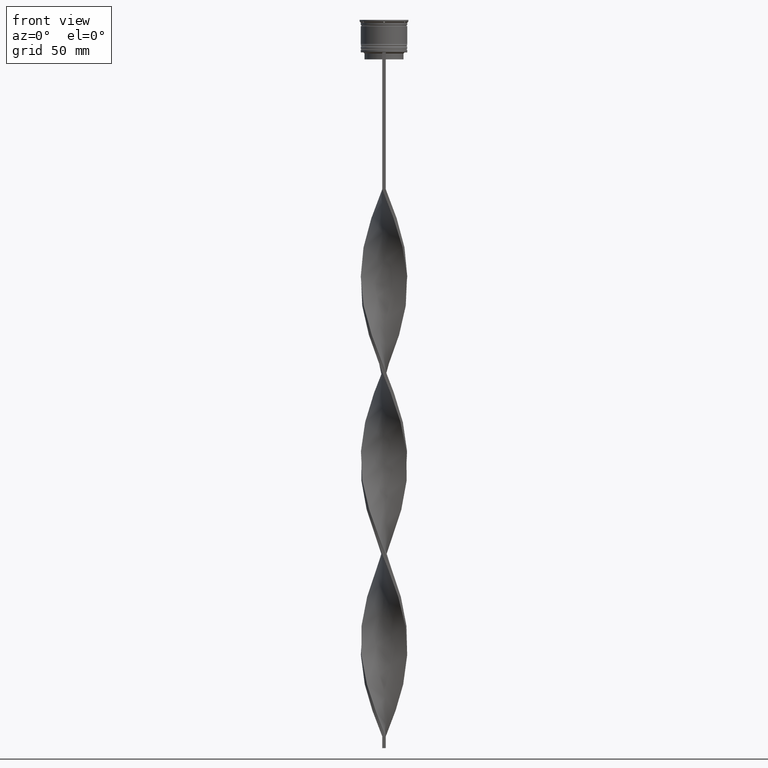
[diagram: clean part render]
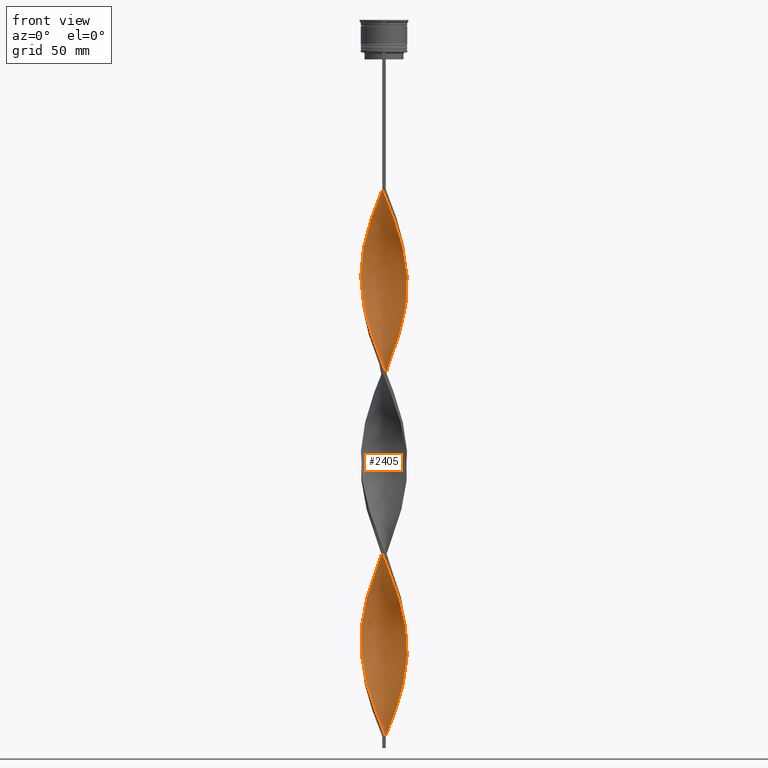
[diagram: same view with one face highlighted and labeled with its STEP entity id]
A machine part, front view. The second image highlights one B-rep face of the part: STEP entity #2405.
In plain terms, the highlighted face is a freeform B-spline surface patch.
Its self-contained STEP definition (entity closure, byte-faithful):
#2 = CARTESIAN_POINT ( 'NONE',  ( -2.305110905848664515, -9.759557557171209652, -226.3999999999999773 ) ) ;
#13 = CARTESIAN_POINT ( 'NONE',  ( -5.882599862582949868, -8.159681294278264829, -216.5666666666666629 ) ) ;
#15 = CARTESIAN_POINT ( 'NONE',  ( -3.143615391390492508, -9.555263588120853413, -299.1666666666666856 ) ) ;
#19 = CARTESIAN_POINT ( 'NONE',  ( 9.929392229344641052, 1.610139721665727164, -118.2333333333333343 ) ) ;
#31 = CARTESIAN_POINT ( 'NONE',  ( -8.945852645255820690, 4.599684817117893232, -255.9000000000000625 ) ) ;
#32 = CARTESIAN_POINT ( 'NONE',  ( 3.803462330970841965, 9.278802417170329164, -301.1333333333333258 ) ) ;
#36 = CARTESIAN_POINT ( 'NONE',  ( -2.376877556528109725, -9.742327908732745456, -301.1333333333333258 ) ) ;
#44 = CARTESIAN_POINT ( 'NONE',  ( 0.7500000000000009992, 10.00000000000000533, -151.6666666666666856 ) ) ;
#59 = CARTESIAN_POINT ( 'NONE',  ( -0.8235783949559565276, -9.994209254731547531, -305.0666666666666629 ) ) ;
#61 = CARTESIAN_POINT ( 'NONE',  ( 2.305110905848663627, 9.759557557171209652, -305.0666666666666629 ) ) ;
#65 = CARTESIAN_POINT ( 'NONE',  ( -9.555263588120853413, 3.143615391390492064, -259.8333333333334281 ) ) ;
#72 = CARTESIAN_POINT ( 'NONE',  ( 7.601397897755390431, 6.540737725975568573, -132.0000000000000000 ) ) ;
#78 = CARTESIAN_POINT ( 'NONE',  ( 3.803462330970837524, -9.278802417170323835, -159.5333333333333314 ) ) ;
#85 = CARTESIAN_POINT ( 'NONE',  ( -9.278802417170323835, -3.803462330970837968, -277.5333333333333030 ) ) ;
#92 = CARTESIAN_POINT ( 'NONE',  ( -4.599684817117894120, 8.945852645255826019, -165.4333333333333655 ) ) ;
#104 = CARTESIAN_POINT ( 'NONE',  ( -9.555263588120853413, 3.143615391390492064, -259.8333333333334281 ) ) ;
#115 = CARTESIAN_POINT ( 'NONE',  ( -8.531008882968828644, 5.271089777143520116, -96.60000000000000853 ) ) ;
#119 = CARTESIAN_POINT ( 'NONE',  ( -10.05902628011846112, 0.03701706824618515579, -110.3666666666666742 ) ) ;
#132 = CARTESIAN_POINT ( 'NONE',  ( 7.138980714781978598, 7.086630674828938048, -208.7000000000000171 ) ) ;
#133 = CARTESIAN_POINT ( 'NONE',  ( -5.942494737169149666, -8.116165120681838374, -291.3000000000000682 ) ) ;
#142 = CARTESIAN_POINT ( 'NONE',  ( -0.7499999999999998890, -10.00000000000000533, -73.00000000000001421 ) ) ;
#146 = CARTESIAN_POINT ( 'NONE',  ( 9.555263588120860518, 3.143615391390493397, -279.4999999999999432 ) ) ;
#149 = CARTESIAN_POINT ( 'NONE',  ( -9.929392229344633947, 1.610139721665727164, -106.4333333333333513 ) ) ;
#165 = CARTESIAN_POINT ( 'NONE',  ( 9.994209254731556413, 0.8235783949559557504, -273.5999999999999659 ) ) ;
#168 = CARTESIAN_POINT ( 'NONE',  ( -6.484615268705940849, 7.649331004530118605, -88.73333333333334849 ) ) ;
#172 = CARTESIAN_POINT ( 'NONE',  ( 9.759557557171204323, 2.305110905848659630, -194.9333333333333371 ) ) ;
#184 = CARTESIAN_POINT ( 'NONE',  ( -2.305110905848661851, 9.759557557171204323, -76.93333333333333712 ) ) ;
#205 = CARTESIAN_POINT ( 'NONE',  ( -8.116165120681841927, -5.942494737169155883, -208.7000000000000171 ) ) ;
#209 = CARTESIAN_POINT ( 'NONE',  ( -8.116165120681836598, 5.942494737169148777, -94.63333333333335418 ) ) ;
#212 = CARTESIAN_POINT ( 'NONE',  ( -5.208159890536742331, 8.569572367079016928, -84.80000000000001137 ) ) ;
#221 =( BOUNDED_CURVE ( )  B_SPLINE_CURVE ( 2, ( #3820, #3861, #896, #3502, #1854, #3178, #212, #1526, #168, #466, #1486, #1067, #3464, #3417, #1095, #766, #2393, #149, #4125, #119, #3718, #2445, #3691, #716, #1751, #1118, #2088, #2464, #2064, #789, #2108, #424, #1422, #3437, #1794, #1467, #2786, #1702, #3046, #3372, #2699, #720, #3020, #401, #78, #1382, #429, #1402, #4041, #4023, #1051, #1072, #2376, #3696, #1800, #1490, #3140, #2808, #4092, #794, #3787, #1123, #172, #2114, #3276, #2946, #3897, #930, #1279, #132, #1456, #2723, #2074, #2678, #434, #1737, #2746, #4072, #4047, #2118, #2774, #1686, #2359, #726, #1079, #1407, #3405, #2096, #3027, #706, #3379, #2453, #1759, #31, #3070, #104, #3003, #1107, #1432, #3729, #3702, #2029, #2431, #3448, #777, #4027, #408, #749, #3357, #3769, #1360, #133, #4003, #1128, #1708, #2050, #3681, #3050, #59, #3424, #3751 ),
 .UNSPECIFIED., .F., .T. ) 
 B_SPLINE_CURVE_WITH_KNOTS ( ( 3, 2, 2, 2, 2, 2, 2, 2, 2, 2, 2, 2, 2, 2, 2, 2, 2, 2, 2, 2, 2, 2, 2, 2, 2, 2, 2, 2, 2, 2, 2, 2, 2, 2, 2, 2, 2, 2, 2, 2, 2, 2, 2, 2, 2, 2, 2, 2, 2, 2, 2, 2, 2, 2, 2, 2, 2, 2, 2, 2, 3 ),
 ( 0.000000000000000000, 0.01250000000000000243, 0.02500000000000000486, 0.03749999999999999861, 0.05000000000000000971, 0.06250000000000000000, 0.07499999999999999722, 0.08749999999999998057, 0.1000000000000000194, 0.1125000000000000028, 0.1250000000000000000, 0.1375000000000000111, 0.1499999999999999944, 0.1625000000000000056, 0.1749999999999999611, 0.1875000000000000000, 0.2000000000000000389, 0.2124999999999999944, 0.2250000000000000056, 0.2374999999999999611, 0.2500000000000000000, 0.2625000000000000111, 0.2750000000000000222, 0.2874999999999999778, 0.2999999999999999889, 0.3125000000000000000, 0.3250000000000000111, 0.3375000000000000777, 0.3499999999999999223, 0.3624999999999999889, 0.3750000000000000000, 0.3875000000000000111, 0.4000000000000000777, 0.4124999999999999223, 0.4249999999999999889, 0.4375000000000000000, 0.4500000000000000111, 0.4625000000000000777, 0.4749999999999999223, 0.4874999999999999889, 0.5000000000000000000, 0.5124999999999999556, 0.5250000000000000222, 0.5374999999999999778, 0.5500000000000000444, 0.5625000000000000000, 0.5749999999999999556, 0.5875000000000000222, 0.5999999999999999778, 0.6125000000000000444, 0.6250000000000000000, 0.6374999999999999556, 0.6500000000000000222, 0.6624999999999999778, 0.6750000000000001554, 0.6875000000000000000, 0.6999999999999998446, 0.7125000000000000222, 0.7249999999999999778, 0.7375000000000001554, 0.7500000000000000000 ),
 .UNSPECIFIED. ) 
 CURVE ( )  GEOMETRIC_REPRESENTATION_ITEM ( )  RATIONAL_B_SPLINE_CURVE ( ( 1.000000000000000000, 0.9969173337331279638, 1.000000000000000000, 0.9969173337331279638, 1.000000000000000000, 0.9969173337331279638, 1.000000000000000000, 0.9969173337331279638, 1.000000000000000000, 0.9969173337331279638, 1.000000000000000000, 0.9969173337331279638, 1.000000000000000000, 0.9969173337331279638, 1.000000000000000000, 0.9969173337331279638, 1.000000000000000000, 0.9969173337331279638, 1.000000000000000000, 0.9969173337331279638, 1.000000000000000000, 0.9969173337331279638, 1.000000000000000000, 0.9969173337331279638, 1.000000000000000000, 0.9969173337331279638, 1.000000000000000000, 0.9969173337331279638, 1.000000000000000000, 0.9969173337331279638, 1.000000000000000000, 0.9969173337331279638, 1.000000000000000000, 0.9969173337331279638, 1.000000000000000000, 0.9969173337331279638, 1.000000000000000000, 0.9969173337331279638, 1.000000000000000000, 0.9969173337331279638, 1.000000000000000000, 0.9969173337331279638, 1.000000000000000000, 0.9969173337331279638, 1.000000000000000000, 0.9969173337331279638, 1.000000000000000000, 0.9969173337331279638, 1.000000000000000000, 0.9969173337331279638, 1.000000000000000000, 0.9969173337331279638, 1.000000000000000000, 0.9969173337331279638, 1.000000000000000000, 0.9969173337331279638, 1.000000000000000000, 0.9969173337331279638, 1.000000000000000000, 0.9969173337331279638, 1.000000000000000000, 0.9969173337331279638, 1.000000000000000000, 0.9969173337331279638, 1.000000000000000000, 0.9969173337331279638, 1.000000000000000000, 0.9969173337331279638, 1.000000000000000000, 0.9969173337331279638, 1.000000000000000000, 0.9969173337331279638, 1.000000000000000000, 0.9969173337331279638, 1.000000000000000000, 0.9969173337331279638, 1.000000000000000000, 0.9969173337331279638, 1.000000000000000000, 0.9969173337331279638, 1.000000000000000000, 0.9969173337331279638, 1.000000000000000000, 0.9969173337331279638, 1.000000000000000000, 0.9969173337331279638, 1.000000000000000000, 0.9969173337331279638, 1.000000000000000000, 0.9969173337331279638, 1.000000000000000000, 0.9969173337331279638, 1.000000000000000000, 0.9969173337331279638, 1.000000000000000000, 0.9969173337331279638, 1.000000000000000000, 0.9969173337331279638, 1.000000000000000000, 0.9969173337331279638, 1.000000000000000000, 0.9969173337331279638, 1.000000000000000000, 0.9969173337331279638, 1.000000000000000000, 0.9969173337331279638, 1.000000000000000000, 0.9969173337331279638, 1.000000000000000000, 0.9969173337331279638, 1.000000000000000000, 0.9969173337331279638, 1.000000000000000000, 0.9969173337331279638, 1.000000000000000000, 0.9969173337331279638, 1.000000000000000000, 0.9969173337331279638, 1.000000000000000000, 0.9969173337331279638, 1.000000000000000000 ) ) 
 REPRESENTATION_ITEM ( '' )  );
#222 = CARTESIAN_POINT ( 'NONE',  ( 7.138980714781985704, -7.086630674828939824, -94.63333333333335418 ) ) ;
#226 = CARTESIAN_POINT ( 'NONE',  ( -3.803462330970837968, 9.278802417170323835, -238.1999999999999886 ) ) ;
#237 = CARTESIAN_POINT ( 'NONE',  ( 5.942494737169153218, -8.116165120681841927, -90.70000000000001705 ) ) ;
#239 = ORIENTED_EDGE ( 'NONE', *, *, #1339, .T. ) ;
#240 = CARTESIAN_POINT ( 'NONE',  ( -3.073204743451139365, 9.578141394460869762, -236.2333333333333769 ) ) ;
#259 = CARTESIAN_POINT ( 'NONE',  ( 5.208159890536745884, 8.569572367079022257, -139.8666666666666742 ) ) ;
#262 = CARTESIAN_POINT ( 'NONE',  ( -7.649331004530118605, -6.484615268705939073, -128.0666666666666629 ) ) ;
#282 = CARTESIAN_POINT ( 'NONE',  ( -7.138980714781982151, 7.086630674828944265, -173.3000000000000114 ) ) ;
#286 = CARTESIAN_POINT ( 'NONE',  ( 3.073204743451138476, -9.578141394460871538, -157.5666666666666629 ) ) ;
#291 = CARTESIAN_POINT ( 'NONE',  ( 7.138980714781985704, -7.086630674828940712, -94.63333333333335418 ) ) ;
#301 = CARTESIAN_POINT ( 'NONE',  ( -1.537017068246191664, -9.940973719881542436, -228.3666666666666742 ) ) ;
#305 = CARTESIAN_POINT ( 'NONE',  ( 0.8235783949559576378, 9.994209254731547531, -226.3999999999999773 ) ) ;
#311 = CARTESIAN_POINT ( 'NONE',  ( 9.759557557171209652, -2.305110905848663627, -108.3999999999999915 ) ) ;
#345 = CARTESIAN_POINT ( 'NONE',  ( 0.8235783949559563055, -9.994209254731556413, -234.2666666666666515 ) ) ;
#347 = CARTESIAN_POINT ( 'NONE',  ( -8.945852645255818913, 4.599684817117893232, -255.9000000000000909 ) ) ;
#351 = CARTESIAN_POINT ( 'NONE',  ( -9.578141394460878644, 3.073204743451138476, -185.0999999999999659 ) ) ;
#362 = CARTESIAN_POINT ( 'NONE',  ( 7.601397897755390431, 6.540737725975568573, -289.3333333333333144 ) ) ;
#368 = CARTESIAN_POINT ( 'NONE',  ( 9.555263588120860518, 3.143615391390493397, -122.1666666666666998 ) ) ;
#383 = CARTESIAN_POINT ( 'NONE',  ( 3.073204743451142029, 9.578141394460876867, -303.0999999999999659 ) ) ;
#387 = CARTESIAN_POINT ( 'NONE',  ( -6.540737725975564132, -7.601397897755384214, -289.3333333333333144 ) ) ;
#392 = CARTESIAN_POINT ( 'NONE',  ( 10.05902628011846822, 0.03701706824618451047, -114.3000000000000398 ) ) ;
#401 = CARTESIAN_POINT ( 'NONE',  ( 3.073204743451138476, -9.578141394460871538, -157.5666666666666913 ) ) ;
#408 = CARTESIAN_POINT ( 'NONE',  ( -8.569572367079016928, -5.208159890536742331, -281.4666666666666401 ) ) ;
#418 = CARTESIAN_POINT ( 'NONE',  ( -0.7499999999999997780, 9.999999999999998224, -73.00000000000001421 ) ) ;
#421 = CARTESIAN_POINT ( 'NONE',  ( -8.159681294278266606, 5.882599862582949868, -177.2333333333333485 ) ) ;
#424 = CARTESIAN_POINT ( 'NONE',  ( -5.942494737169149666, -8.116165120681838374, -133.9666666666666686 ) ) ;
#429 = CARTESIAN_POINT ( 'NONE',  ( 5.208159890536741443, -8.569572367079016928, -163.4666666666666401 ) ) ;
#434 = CARTESIAN_POINT ( 'NONE',  ( 3.871650104254193536, 9.250558116688337051, -218.5333333333333314 ) ) ;
#444 = CARTESIAN_POINT ( 'NONE',  ( -7.086630674828944265, -7.138980714781980375, -212.6333333333333826 ) ) ;
#449 = ORIENTED_EDGE ( 'NONE', *, *, #3942, .F. ) ;
#462 = CARTESIAN_POINT ( 'NONE',  ( -7.601397897755385102, 6.540737725975564132, -92.66666666666667140 ) ) ;
#466 = CARTESIAN_POINT ( 'NONE',  ( -7.086630674828935383, 7.138980714781979486, -90.70000000000001705 ) ) ;
#486 = CARTESIAN_POINT ( 'NONE',  ( -7.086630674828936272, 7.138980714781979486, -90.70000000000001705 ) ) ;
#498 = CARTESIAN_POINT ( 'NONE',  ( -0.7499999999999997780, -10.00000000000000533, -73.00000000000001421 ) ) ;
#503 = CARTESIAN_POINT ( 'NONE',  ( 0.7499999999999985567, -9.999999999999998224, -309.0000000000000000 ) ) ;
#506 = CARTESIAN_POINT ( 'NONE',  ( -3.803462330970837968, 9.278802417170323835, -80.86666666666667425 ) ) ;
#519 = CARTESIAN_POINT ( 'NONE',  ( -9.578141394460878644, 3.073204743451138921, -185.0999999999999943 ) ) ;
#522 = CARTESIAN_POINT ( 'NONE',  ( 5.942494737169153218, -8.116165120681840150, -248.0333333333333314 ) ) ;
#542 = CARTESIAN_POINT ( 'NONE',  ( 2.305110905848663627, 9.759557557171209652, -147.7333333333333201 ) ) ;
#548 = CARTESIAN_POINT ( 'NONE',  ( 1.610139721665724277, 9.929392229344635723, -224.4333333333333655 ) ) ;
#564 = CARTESIAN_POINT ( 'NONE',  ( 4.533719918490543677, 8.979463439879785014, -141.8333333333333428 ) ) ;
#567 = CARTESIAN_POINT ( 'NONE',  ( -5.208159890536742331, 8.569572367079016928, -242.1333333333333258 ) ) ;
#584 = CARTESIAN_POINT ( 'NONE',  ( -5.942494737169152330, 8.116165120681841927, -169.3666666666667027 ) ) ;
#587 = CARTESIAN_POINT ( 'NONE',  ( 0.7499999999999985567, -9.999999999999998224, -151.6666666666666856 ) ) ;
#592 = CARTESIAN_POINT ( 'NONE',  ( 6.540737725975569461, -7.601397897755390431, -92.66666666666667140 ) ) ;
#605 = CARTESIAN_POINT ( 'NONE',  ( -6.484615268705947067, -7.649331004530122158, -214.5999999999999943 ) ) ;
#608 = CARTESIAN_POINT ( 'NONE',  ( -2.376877556528109725, -9.742327908732745456, -143.7999999999999829 ) ) ;
#633 = CARTESIAN_POINT ( 'NONE',  ( 7.601397897755384214, -6.540737725975565020, -171.3333333333333428 ) ) ;
#638 = CARTESIAN_POINT ( 'NONE',  ( 8.569572367079022257, -5.208159890536745884, -100.5333333333333314 ) ) ;
#652 = CARTESIAN_POINT ( 'NONE',  ( -7.138980714781979486, -7.086630674828935383, -287.3666666666667311 ) ) ;
#669 = CARTESIAN_POINT ( 'NONE',  ( 5.942494737169153218, -8.116165120681841927, -248.0333333333333599 ) ) ;
#671 = CARTESIAN_POINT ( 'NONE',  ( -8.116165120681836598, 5.942494737169148777, -251.9666666666666970 ) ) ;
#676 = CARTESIAN_POINT ( 'NONE',  ( -8.979463439879783238, 4.533719918490548118, -181.1666666666667140 ) ) ;
#686 = CARTESIAN_POINT ( 'NONE',  ( -4.533719918490549006, -8.979463439879781461, -220.5000000000000284 ) ) ;
#688 = CARTESIAN_POINT ( 'NONE',  ( -0.8235783949559565276, -9.994209254731547531, -305.0666666666666629 ) ) ;
#692 = CARTESIAN_POINT ( 'NONE',  ( 4.533719918490543677, 8.979463439879786790, -141.8333333333333144 ) ) ;
#706 = CARTESIAN_POINT ( 'NONE',  ( -7.086630674828935383, 7.138980714781979486, -248.0333333333333599 ) ) ;
#709 = CARTESIAN_POINT ( 'NONE',  ( -7.649331004530118605, -6.484615268705939073, -285.3999999999999773 ) ) ;
#713 = CARTESIAN_POINT ( 'NONE',  ( 5.208159890536745884, 8.569572367079022257, -139.8666666666666742 ) ) ;
#716 = CARTESIAN_POINT ( 'NONE',  ( -9.578141394460871538, -3.073204743451138476, -118.2333333333333485 ) ) ;
#720 = CARTESIAN_POINT ( 'NONE',  ( 1.537017068246183005, -9.940973719881535331, -153.6333333333333826 ) ) ;
#726 = CARTESIAN_POINT ( 'NONE',  ( -3.073204743451139365, 9.578141394460869762, -236.2333333333333485 ) ) ;
#736 = CARTESIAN_POINT ( 'NONE',  ( -8.945852645255827795, -4.599684817117891455, -204.7666666666666799 ) ) ;
#749 = CARTESIAN_POINT ( 'NONE',  ( -8.159681294278259500, -5.882599862582948091, -283.4333333333333940 ) ) ;
#762 = CARTESIAN_POINT ( 'NONE',  ( -2.376877556528109725, 9.742327908732752562, -159.5333333333333314 ) ) ;
#766 = CARTESIAN_POINT ( 'NONE',  ( -9.555263588120853413, 3.143615391390492064, -102.5000000000000142 ) ) ;
#768 =( BOUNDED_SURFACE ( )  B_SPLINE_SURFACE ( 1, 2, ( 
 ( #1566, #4232, #1246, #2890, #1266, #4208, #2236, #2562, #3563, #1936, #592, #291, #3929, #962, #638, #2284, #1958, #3283, #311, #4016, #2693, #392, #3394, #19, #1999, #368, #3740, #1722, #1328, #3040, #72, #2976, #4035, #1396, #713, #692, #3989, #3668, #3688, #2015, #44, #3013, #2713, #2992, #762, #2036, #2648, #92, #3324, #1064, #3365, #2390, #3343, #421, #2732, #676, #1695, #351, #1418, #3970, #1374, #1748, #2085, #2664, #1348, #3713, #1044, #736, #1675, #2368, #2062, #444, #3060, #4057, #1091, #2419, #1023, #3414, #2, #1000, #2347, #2323, #3648, #1833, #832, #3835, #3132, #1815, #2481, #522, #1502, #3818, #2782, #1196, #2822, #4163, #4085, #2760, #2518, #3777, #872, #1177, #165, #3521, #4123, #146, #1484, #2152, #1115, #3800, #2503, #807, #3760, #851, #2802, #2105, #3154, #2191, #2171, #4106, #3460 ),
 ( #3175, #3433, #184, #3482, #506, #2129, #3499, #1522, #786, #486, #462, #209, #115, #1155, #1851, #1767, #1464, #3109, #2843, #2461, #4144, #1788, #3081, #1443, #2442, #1135, #2228, #3578, #262, #893, #912, #3877, #1585, #1889, #2861, #3558, #608, #3899, #2623, #1907, #587, #1260, #3604, #286, #2595, #1560, #4269, #1606, #2948, #4179, #633, #2908, #3230, #4225, #1214, #4247, #1304, #2575, #3538, #932, #2252, #2533, #3211, #3947, #1932, #3256, #2927, #1952, #977, #1280, #2211, #3858, #3922, #955, #2300, #2279, #3277, #548, #305, #1873, #4201, #3195, #1627, #240, #226, #1541, #567, #2883, #1240, #2556, #2660, #671, #1083, #347, #1740, #65, #1410, #3622, #4290, #3983, #4029, #1992, #2643, #1015, #85, #1037, #1971, #2362, #709, #652, #387, #3684, #1366, #1344, #1671, #15, #36, #2338, #688, #3663, #2032 ) ),
 .UNSPECIFIED., .F., .F., .F. ) 
 B_SPLINE_SURFACE_WITH_KNOTS ( ( 2, 2 ),
 ( 3, 2, 2, 2, 2, 2, 2, 2, 2, 2, 2, 2, 2, 2, 2, 2, 2, 2, 2, 2, 2, 2, 2, 2, 2, 2, 2, 2, 2, 2, 2, 2, 2, 2, 2, 2, 2, 2, 2, 2, 2, 2, 2, 2, 2, 2, 2, 2, 2, 2, 2, 2, 2, 2, 2, 2, 2, 2, 2, 2, 3 ),
 ( 0.000000000000000000, 1.000000000000000000 ),
 ( 0.000000000000000000, 0.01250000000000000069, 0.02500000000000000139, 0.03749999999999999861, 0.05000000000000000278, 0.06250000000000000000, 0.07499999999999999722, 0.08749999999999999445, 0.1000000000000000056, 0.1125000000000000028, 0.1250000000000000000, 0.1375000000000000111, 0.1499999999999999944, 0.1625000000000000056, 0.1749999999999999889, 0.1875000000000000000, 0.2000000000000000111, 0.2124999999999999944, 0.2250000000000000056, 0.2374999999999999889, 0.2500000000000000000, 0.2625000000000000111, 0.2750000000000000222, 0.2874999999999999778, 0.2999999999999999889, 0.3125000000000000000, 0.3250000000000000111, 0.3375000000000000222, 0.3499999999999999778, 0.3624999999999999889, 0.3750000000000000000, 0.3875000000000000111, 0.4000000000000000222, 0.4124999999999999778, 0.4249999999999999889, 0.4375000000000000000, 0.4500000000000000111, 0.4625000000000000222, 0.4749999999999999778, 0.4874999999999999889, 0.5000000000000000000, 0.5124999999999999556, 0.5250000000000000222, 0.5374999999999999778, 0.5500000000000000444, 0.5625000000000000000, 0.5749999999999999556, 0.5875000000000000222, 0.5999999999999999778, 0.6125000000000000444, 0.6250000000000000000, 0.6374999999999999556, 0.6500000000000000222, 0.6624999999999999778, 0.6750000000000000444, 0.6875000000000000000, 0.6999999999999999556, 0.7125000000000000222, 0.7249999999999999778, 0.7375000000000000444, 0.7500000000000000000 ),
 .UNSPECIFIED. ) 
 GEOMETRIC_REPRESENTATION_ITEM ( )  RATIONAL_B_SPLINE_SURFACE ( (
 ( 1.000000000000000000, 0.9969173337331279638, 1.000000000000000000, 0.9969173337331279638, 1.000000000000000000, 0.9969173337331279638, 1.000000000000000000, 0.9969173337331279638, 1.000000000000000000, 0.9969173337331279638, 1.000000000000000000, 0.9969173337331279638, 1.000000000000000000, 0.9969173337331279638, 1.000000000000000000, 0.9969173337331279638, 1.000000000000000000, 0.9969173337331279638, 1.000000000000000000, 0.9969173337331279638, 1.000000000000000000, 0.9969173337331279638, 1.000000000000000000, 0.9969173337331279638, 1.000000000000000000, 0.9969173337331279638, 1.000000000000000000, 0.9969173337331279638, 1.000000000000000000, 0.9969173337331279638, 1.000000000000000000, 0.9969173337331279638, 1.000000000000000000, 0.9969173337331279638, 1.000000000000000000, 0.9969173337331279638, 1.000000000000000000, 0.9969173337331279638, 1.000000000000000000, 0.9969173337331279638, 1.000000000000000000, 0.9969173337331279638, 1.000000000000000000, 0.9969173337331279638, 1.000000000000000000, 0.9969173337331279638, 1.000000000000000000, 0.9969173337331279638, 1.000000000000000000, 0.9969173337331279638, 1.000000000000000000, 0.9969173337331279638, 1.000000000000000000, 0.9969173337331279638, 1.000000000000000000, 0.9969173337331279638, 1.000000000000000000, 0.9969173337331279638, 1.000000000000000000, 0.9969173337331279638, 1.000000000000000000, 0.9969173337331279638, 1.000000000000000000, 0.9969173337331279638, 1.000000000000000000, 0.9969173337331279638, 1.000000000000000000, 0.9969173337331279638, 1.000000000000000000, 0.9969173337331279638, 1.000000000000000000, 0.9969173337331279638, 1.000000000000000000, 0.9969173337331279638, 1.000000000000000000, 0.9969173337331279638, 1.000000000000000000, 0.9969173337331279638, 1.000000000000000000, 0.9969173337331279638, 1.000000000000000000, 0.9969173337331279638, 1.000000000000000000, 0.9969173337331279638, 1.000000000000000000, 0.9969173337331279638, 1.000000000000000000, 0.9969173337331279638, 1.000000000000000000, 0.9969173337331279638, 1.000000000000000000, 0.9969173337331279638, 1.000000000000000000, 0.9969173337331279638, 1.000000000000000000, 0.9969173337331279638, 1.000000000000000000, 0.9969173337331279638, 1.000000000000000000, 0.9969173337331279638, 1.000000000000000000, 0.9969173337331279638, 1.000000000000000000, 0.9969173337331279638, 1.000000000000000000, 0.9969173337331279638, 1.000000000000000000, 0.9969173337331279638, 1.000000000000000000, 0.9969173337331279638, 1.000000000000000000, 0.9969173337331279638, 1.000000000000000000, 0.9969173337331279638, 1.000000000000000000, 0.9969173337331279638, 1.000000000000000000, 0.9969173337331279638, 1.000000000000000000, 0.9969173337331279638, 1.000000000000000000),
 ( 1.000000000000000000, 0.9969173337331279638, 1.000000000000000000, 0.9969173337331279638, 1.000000000000000000, 0.9969173337331279638, 1.000000000000000000, 0.9969173337331279638, 1.000000000000000000, 0.9969173337331279638, 1.000000000000000000, 0.9969173337331279638, 1.000000000000000000, 0.9969173337331279638, 1.000000000000000000, 0.9969173337331279638, 1.000000000000000000, 0.9969173337331279638, 1.000000000000000000, 0.9969173337331279638, 1.000000000000000000, 0.9969173337331279638, 1.000000000000000000, 0.9969173337331279638, 1.000000000000000000, 0.9969173337331279638, 1.000000000000000000, 0.9969173337331279638, 1.000000000000000000, 0.9969173337331279638, 1.000000000000000000, 0.9969173337331279638, 1.000000000000000000, 0.9969173337331279638, 1.000000000000000000, 0.9969173337331279638, 1.000000000000000000, 0.9969173337331279638, 1.000000000000000000, 0.9969173337331279638, 1.000000000000000000, 0.9969173337331279638, 1.000000000000000000, 0.9969173337331279638, 1.000000000000000000, 0.9969173337331279638, 1.000000000000000000, 0.9969173337331279638, 1.000000000000000000, 0.9969173337331279638, 1.000000000000000000, 0.9969173337331279638, 1.000000000000000000, 0.9969173337331279638, 1.000000000000000000, 0.9969173337331279638, 1.000000000000000000, 0.9969173337331279638, 1.000000000000000000, 0.9969173337331279638, 1.000000000000000000, 0.9969173337331279638, 1.000000000000000000, 0.9969173337331279638, 1.000000000000000000, 0.9969173337331279638, 1.000000000000000000, 0.9969173337331279638, 1.000000000000000000, 0.9969173337331279638, 1.000000000000000000, 0.9969173337331279638, 1.000000000000000000, 0.9969173337331279638, 1.000000000000000000, 0.9969173337331279638, 1.000000000000000000, 0.9969173337331279638, 1.000000000000000000, 0.9969173337331279638, 1.000000000000000000, 0.9969173337331279638, 1.000000000000000000, 0.9969173337331279638, 1.000000000000000000, 0.9969173337331279638, 1.000000000000000000, 0.9969173337331279638, 1.000000000000000000, 0.9969173337331279638, 1.000000000000000000, 0.9969173337331279638, 1.000000000000000000, 0.9969173337331279638, 1.000000000000000000, 0.9969173337331279638, 1.000000000000000000, 0.9969173337331279638, 1.000000000000000000, 0.9969173337331279638, 1.000000000000000000, 0.9969173337331279638, 1.000000000000000000, 0.9969173337331279638, 1.000000000000000000, 0.9969173337331279638, 1.000000000000000000, 0.9969173337331279638, 1.000000000000000000, 0.9969173337331279638, 1.000000000000000000, 0.9969173337331279638, 1.000000000000000000, 0.9969173337331279638, 1.000000000000000000, 0.9969173337331279638, 1.000000000000000000, 0.9969173337331279638, 1.000000000000000000, 0.9969173337331279638, 1.000000000000000000) ) ) 
 REPRESENTATION_ITEM ( '' )  SURFACE ( )  );
#777 = CARTESIAN_POINT ( 'NONE',  ( -9.278802417170323835, -3.803462330970837968, -277.5333333333333030 ) ) ;
#786 = CARTESIAN_POINT ( 'NONE',  ( -6.484615268705940849, 7.649331004530118605, -88.73333333333334849 ) ) ;
#789 = CARTESIAN_POINT ( 'NONE',  ( -7.138980714781979486, -7.086630674828934495, -130.0333333333333314 ) ) ;
#794 = CARTESIAN_POINT ( 'NONE',  ( 10.05902628011846289, -0.03701706824619090813, -189.0333333333333314 ) ) ;
#803 = CARTESIAN_POINT ( 'NONE',  ( 0.8235783949559563055, -9.994209254731556413, -76.93333333333333712 ) ) ;
#807 = CARTESIAN_POINT ( 'NONE',  ( 7.086630674828940712, 7.138980714781985704, -291.3000000000000682 ) ) ;
#828 = CARTESIAN_POINT ( 'NONE',  ( 4.599684817117895896, -8.945852645255826019, -86.76666666666666572 ) ) ;
#832 = CARTESIAN_POINT ( 'NONE',  ( 2.376877556528110169, -9.742327908732750785, -238.1999999999999886 ) ) ;
#848 = CARTESIAN_POINT ( 'NONE',  ( 9.940973719881544213, -1.537017068246185447, -110.3666666666666742 ) ) ;
#851 = CARTESIAN_POINT ( 'NONE',  ( 5.882599862582953421, 8.159681294278264829, -295.2333333333332916 ) ) ;
#867 = CARTESIAN_POINT ( 'NONE',  ( 8.531008882968833973, 5.271089777143522781, -128.0666666666666629 ) ) ;
#872 = CARTESIAN_POINT ( 'NONE',  ( 10.00000000000000533, -0.7500000000000004441, -269.6666666666666856 ) ) ;
#890 = CARTESIAN_POINT ( 'NONE',  ( 9.278802417170329164, -3.803462330970841521, -104.4666666666666828 ) ) ;
#893 = CARTESIAN_POINT ( 'NONE',  ( -7.138980714781979486, -7.086630674828935383, -130.0333333333333314 ) ) ;
#896 = CARTESIAN_POINT ( 'NONE',  ( -2.305110905848661851, 9.759557557171204323, -76.93333333333333712 ) ) ;
#908 = CARTESIAN_POINT ( 'NONE',  ( -9.742327908732752562, -2.376877556528108837, -198.8666666666666742 ) ) ;
#912 = CARTESIAN_POINT ( 'NONE',  ( -6.540737725975564132, -7.601397897755384214, -132.0000000000000000 ) ) ;
#927 = CARTESIAN_POINT ( 'NONE',  ( -6.540737725975568573, 7.601397897755391320, -171.3333333333333428 ) ) ;
#930 = CARTESIAN_POINT ( 'NONE',  ( 8.159681294278261277, 5.882599862582942762, -204.7666666666666799 ) ) ;
#932 = CARTESIAN_POINT ( 'NONE',  ( 10.05902628011846289, -0.03701706824619090813, -189.0333333333333314 ) ) ;
#955 = CARTESIAN_POINT ( 'NONE',  ( 4.599684817117890567, 8.945852645255820690, -216.5666666666666629 ) ) ;
#962 = CARTESIAN_POINT ( 'NONE',  ( 8.159681294278264829, -5.882599862582953421, -98.56666666666669130 ) ) ;
#975 = CARTESIAN_POINT ( 'NONE',  ( 6.540737725975569461, -7.601397897755390431, -250.0000000000000000 ) ) ;
#977 = CARTESIAN_POINT ( 'NONE',  ( 7.649331004530118605, 6.484615268705938185, -206.7333333333333201 ) ) ;
#993 = CARTESIAN_POINT ( 'NONE',  ( 9.278802417170329164, -3.803462330970841521, -261.7999999999999545 ) ) ;
#1000 = CARTESIAN_POINT ( 'NONE',  ( -1.537017068246191442, -9.940973719881542436, -228.3666666666666458 ) ) ;
#1011 = CARTESIAN_POINT ( 'NONE',  ( 8.531008882968833973, 5.271089777143522781, -285.3999999999999773 ) ) ;
#1015 = CARTESIAN_POINT ( 'NONE',  ( -9.578141394460871538, -3.073204743451138476, -275.5666666666666060 ) ) ;
#1023 = CARTESIAN_POINT ( 'NONE',  ( -3.803462330970843297, -9.278802417170329164, -222.4666666666666686 ) ) ;
#1037 = CARTESIAN_POINT ( 'NONE',  ( -8.979463439879779685, -4.533719918490539236, -279.4999999999999432 ) ) ;
#1044 = CARTESIAN_POINT ( 'NONE',  ( -9.250558116688345933, -3.871650104254193092, -202.8000000000000114 ) ) ;
#1051 = CARTESIAN_POINT ( 'NONE',  ( 7.601397897755384214, -6.540737725975565020, -171.3333333333333428 ) ) ;
#1064 = CARTESIAN_POINT ( 'NONE',  ( -5.942494737169152330, 8.116165120681840150, -169.3666666666667027 ) ) ;
#1067 = CARTESIAN_POINT ( 'NONE',  ( -8.116165120681836598, 5.942494737169148777, -94.63333333333335418 ) ) ;
#1072 = CARTESIAN_POINT ( 'NONE',  ( 8.116165120681834821, -5.942494737169153218, -173.3000000000000114 ) ) ;
#1079 = CARTESIAN_POINT ( 'NONE',  ( -3.803462330970837968, 9.278802417170323835, -238.1999999999999886 ) ) ;
#1083 = CARTESIAN_POINT ( 'NONE',  ( -8.531008882968828644, 5.271089777143520116, -253.9333333333333371 ) ) ;
#1091 = CARTESIAN_POINT ( 'NONE',  ( -5.208159890536746772, -8.569572367079022257, -218.5333333333333314 ) ) ;
#1095 = CARTESIAN_POINT ( 'NONE',  ( -9.250558116688337051, 3.871650104254192204, -100.5333333333333314 ) ) ;
#1107 = CARTESIAN_POINT ( 'NONE',  ( -9.929392229344633947, 1.610139721665727164, -263.7666666666667084 ) ) ;
#1115 = CARTESIAN_POINT ( 'NONE',  ( 8.531008882968833973, 5.271089777143522781, -285.3999999999999773 ) ) ;
#1118 = CARTESIAN_POINT ( 'NONE',  ( -8.979463439879777908, -4.533719918490539236, -122.1666666666666856 ) ) ;
#1123 = CARTESIAN_POINT ( 'NONE',  ( 9.940973719881535331, 1.537017068246186779, -192.9666666666666970 ) ) ;
#1128 = CARTESIAN_POINT ( 'NONE',  ( -4.599684817117893232, -8.945852645255820690, -295.2333333333333485 ) ) ;
#1135 = CARTESIAN_POINT ( 'NONE',  ( -8.979463439879779685, -4.533719918490539236, -122.1666666666666998 ) ) ;
#1155 = CARTESIAN_POINT ( 'NONE',  ( -8.945852645255818913, 4.599684817117893232, -98.56666666666669130 ) ) ;
#1177 = CARTESIAN_POINT ( 'NONE',  ( 10.05902628011846822, 0.03701706824618451047, -271.6333333333332689 ) ) ;
#1192 = CARTESIAN_POINT ( 'NONE',  ( -9.940973719881542436, 1.537017068246191220, -189.0333333333333314 ) ) ;
#1196 = CARTESIAN_POINT ( 'NONE',  ( 8.159681294278264829, -5.882599862582953421, -255.9000000000000909 ) ) ;
#1211 = CARTESIAN_POINT ( 'NONE',  ( -3.871650104254193092, 9.250558116688344157, -163.4666666666666401 ) ) ;
#1214 = CARTESIAN_POINT ( 'NONE',  ( 9.250558116688337051, -3.871650104254192648, -179.1999999999999886 ) ) ;
#1235 = CARTESIAN_POINT ( 'NONE',  ( -9.278802417170329164, 3.803462330970842409, -183.1333333333333258 ) ) ;
#1240 = CARTESIAN_POINT ( 'NONE',  ( -6.484615268705940849, 7.649331004530118605, -246.0666666666666629 ) ) ;
#1246 = CARTESIAN_POINT ( 'NONE',  ( 0.8235783949559564165, -9.994209254731556413, -76.93333333333333712 ) ) ;
#1255 = CARTESIAN_POINT ( 'NONE',  ( -7.601397897755391320, -6.540737725975566796, -210.6666666666666572 ) ) ;
#1260 = CARTESIAN_POINT ( 'NONE',  ( 1.537017068246182783, -9.940973719881535331, -153.6333333333333826 ) ) ;
#1266 = CARTESIAN_POINT ( 'NONE',  ( 2.376877556528110169, -9.742327908732750785, -80.86666666666667425 ) ) ;
#1277 = CARTESIAN_POINT ( 'NONE',  ( 7.649331004530123934, -6.484615268705944402, -96.60000000000000853 ) ) ;
#1279 = CARTESIAN_POINT ( 'NONE',  ( 7.649331004530118605, 6.484615268705938185, -206.7333333333333201 ) ) ;
#1280 = CARTESIAN_POINT ( 'NONE',  ( 7.138980714781978598, 7.086630674828938936, -208.7000000000000171 ) ) ;
#1301 = CARTESIAN_POINT ( 'NONE',  ( 5.882599862582952532, 8.159681294278264829, -295.2333333333333485 ) ) ;
#1304 = CARTESIAN_POINT ( 'NONE',  ( 9.742327908732745456, -2.376877556528110169, -183.1333333333333258 ) ) ;
#1323 = CARTESIAN_POINT ( 'NONE',  ( 1.610139721665727386, -9.929392229344641052, -236.2333333333333485 ) ) ;
#1328 = CARTESIAN_POINT ( 'NONE',  ( 8.531008882968833973, 5.271089777143522781, -128.0666666666666629 ) ) ;
#1339 = EDGE_CURVE ( 'NONE', #3946, #4054, #221, .T. ) ;
#1340 = CARTESIAN_POINT ( 'NONE',  ( 9.555263588120860518, 3.143615391390493397, -279.4999999999999432 ) ) ;
#1344 = CARTESIAN_POINT ( 'NONE',  ( -4.599684817117893232, -8.945852645255818913, -295.2333333333332916 ) ) ;
#1348 = CARTESIAN_POINT ( 'NONE',  ( -9.742327908732752562, -2.376877556528108837, -198.8666666666666742 ) ) ;
#1360 = CARTESIAN_POINT ( 'NONE',  ( -6.540737725975564132, -7.601397897755384214, -289.3333333333333144 ) ) ;
#1363 = CARTESIAN_POINT ( 'NONE',  ( 0.7500000000000011102, 10.00000000000000533, -309.0000000000000000 ) ) ;
#1366 = CARTESIAN_POINT ( 'NONE',  ( -5.271089777143521005, -8.531008882968826867, -293.2666666666666515 ) ) ;
#1374 = CARTESIAN_POINT ( 'NONE',  ( -10.00000000000000533, 0.7500000000000016653, -191.0000000000000000 ) ) ;
#1382 = CARTESIAN_POINT ( 'NONE',  ( 4.533719918490538348, -8.979463439879777908, -161.5000000000000000 ) ) ;
#1388 = CARTESIAN_POINT ( 'NONE',  ( 0.03701706824618504477, -10.05902628011846822, -232.3000000000000398 ) ) ;
#1396 = CARTESIAN_POINT ( 'NONE',  ( 5.882599862582953421, 8.159681294278264829, -137.9000000000000625 ) ) ;
#1402 = CARTESIAN_POINT ( 'NONE',  ( 5.882599862582947203, -8.159681294278259500, -165.4333333333333371 ) ) ;
#1407 = CARTESIAN_POINT ( 'NONE',  ( -4.533719918490539236, 8.979463439879777908, -240.1666666666666856 ) ) ;
#1410 = CARTESIAN_POINT ( 'NONE',  ( -9.742327908732745456, 2.376877556528109725, -261.7999999999999545 ) ) ;
#1418 = CARTESIAN_POINT ( 'NONE',  ( -9.759557557171209652, 2.305110905848664071, -187.0666666666666629 ) ) ;
#1422 = CARTESIAN_POINT ( 'NONE',  ( -5.271089777143521005, -8.531008882968826867, -135.9333333333333371 ) ) ;
#1432 = CARTESIAN_POINT ( 'NONE',  ( -9.994209254731549308, 0.8235783949559557504, -265.7333333333333485 ) ) ;
#1443 = CARTESIAN_POINT ( 'NONE',  ( -9.578141394460871538, -3.073204743451138476, -118.2333333333333343 ) ) ;
#1456 = CARTESIAN_POINT ( 'NONE',  ( 6.540737725975565020, 7.601397897755383326, -210.6666666666666572 ) ) ;
#1464 = CARTESIAN_POINT ( 'NONE',  ( -9.742327908732745456, 2.376877556528109725, -104.4666666666666828 ) ) ;
#1467 = CARTESIAN_POINT ( 'NONE',  ( -3.143615391390492508, -9.555263588120853413, -141.8333333333333428 ) ) ;
#1484 = CARTESIAN_POINT ( 'NONE',  ( 9.250558116688344157, 3.871650104254193980, -281.4666666666666401 ) ) ;
#1486 = CARTESIAN_POINT ( 'NONE',  ( -7.601397897755385102, 6.540737725975564132, -92.66666666666667140 ) ) ;
#1490 = CARTESIAN_POINT ( 'NONE',  ( 9.555263588120851637, -3.143615391390496949, -181.1666666666666856 ) ) ;
#1502 = CARTESIAN_POINT ( 'NONE',  ( 6.540737725975569461, -7.601397897755390431, -250.0000000000000000 ) ) ;
#1520 = CARTESIAN_POINT ( 'NONE',  ( -1.610139721665726498, 9.929392229344642828, -157.5666666666666913 ) ) ;
#1522 = CARTESIAN_POINT ( 'NONE',  ( -5.882599862582948980, 8.159681294278261277, -86.76666666666666572 ) ) ;
#1526 = CARTESIAN_POINT ( 'NONE',  ( -5.882599862582948091, 8.159681294278259500, -86.76666666666666572 ) ) ;
#1538 = CARTESIAN_POINT ( 'NONE',  ( -5.271089777143522781, 8.531008882968833973, -167.4000000000000057 ) ) ;
#1541 = CARTESIAN_POINT ( 'NONE',  ( -4.533719918490539236, 8.979463439879779685, -240.1666666666667140 ) ) ;
#1557 = CARTESIAN_POINT ( 'NONE',  ( 3.073204743451142029, 9.578141394460876867, -145.7666666666666515 ) ) ;
#1560 = CARTESIAN_POINT ( 'NONE',  ( 4.533719918490538348, -8.979463439879779685, -161.5000000000000000 ) ) ;
#1566 = CARTESIAN_POINT ( 'NONE',  ( -0.7499999999999997780, -10.00000000000000533, -73.00000000000001421 ) ) ;
#1581 = CARTESIAN_POINT ( 'NONE',  ( -0.8235783949559550843, 9.994209254731556413, -155.6000000000000227 ) ) ;
#1585 = CARTESIAN_POINT ( 'NONE',  ( -5.271089777143521005, -8.531008882968826867, -135.9333333333333371 ) ) ;
#1601 = EDGE_CURVE ( 'NONE', #1962, #3946, #3791, .T. ) ;
#1603 = CARTESIAN_POINT ( 'NONE',  ( 7.086630674828940712, 7.138980714781985704, -133.9666666666666686 ) ) ;
#1606 = CARTESIAN_POINT ( 'NONE',  ( 5.882599862582947203, -8.159681294278261277, -165.4333333333333655 ) ) ;
#1627 = CARTESIAN_POINT ( 'NONE',  ( -2.305110905848661851, 9.759557557171204323, -234.2666666666666515 ) ) ;
#1647 = CARTESIAN_POINT ( 'NONE',  ( -5.208159890536746772, -8.569572367079022257, -218.5333333333333314 ) ) ;
#1668 = CARTESIAN_POINT ( 'NONE',  ( 9.759557557171209652, -2.305110905848663627, -265.7333333333333485 ) ) ;
#1671 = CARTESIAN_POINT ( 'NONE',  ( -3.871650104254192648, -9.250558116688337051, -297.2000000000000455 ) ) ;
#1675 = CARTESIAN_POINT ( 'NONE',  ( -8.531008882968833973, -5.271089777143521893, -206.7333333333333201 ) ) ;
#1686 = CARTESIAN_POINT ( 'NONE',  ( -1.537017068246184115, 9.940973719881535331, -232.3000000000000398 ) ) ;
#1687 = CARTESIAN_POINT ( 'NONE',  ( 6.484615268705946178, 7.649331004530122158, -293.2666666666666515 ) ) ;
#1695 = CARTESIAN_POINT ( 'NONE',  ( -9.278802417170329164, 3.803462330970842409, -183.1333333333333258 ) ) ;
#1702 = CARTESIAN_POINT ( 'NONE',  ( -1.610139721665727608, -9.929392229344633947, -145.7666666666666515 ) ) ;
#1708 = CARTESIAN_POINT ( 'NONE',  ( -3.871650104254192648, -9.250558116688337051, -297.2000000000000455 ) ) ;
#1710 = CARTESIAN_POINT ( 'NONE',  ( 8.979463439879785014, -4.533719918490543677, -259.8333333333334281 ) ) ;
#1722 = CARTESIAN_POINT ( 'NONE',  ( 8.945852645255826019, 4.599684817117895896, -126.1000000000000369 ) ) ;
#1737 = CARTESIAN_POINT ( 'NONE',  ( 3.143615391390497837, 9.555263588120851637, -220.5000000000000284 ) ) ;
#1740 = CARTESIAN_POINT ( 'NONE',  ( -9.250558116688337051, 3.871650104254192204, -257.8666666666666742 ) ) ;
#1748 = CARTESIAN_POINT ( 'NONE',  ( -10.05902628011846822, -0.03701706824618775094, -192.9666666666666970 ) ) ;
#1751 = CARTESIAN_POINT ( 'NONE',  ( -9.278802417170323835, -3.803462330970837968, -120.2000000000000028 ) ) ;
#1759 = CARTESIAN_POINT ( 'NONE',  ( -8.531008882968828644, 5.271089777143520116, -253.9333333333333371 ) ) ;
#1767 = CARTESIAN_POINT ( 'NONE',  ( -9.555263588120853413, 3.143615391390492064, -102.5000000000000000 ) ) ;
#1788 = CARTESIAN_POINT ( 'NONE',  ( -9.940973719881535331, -1.537017068246183449, -114.3000000000000398 ) ) ;
#1794 = CARTESIAN_POINT ( 'NONE',  ( -3.871650104254192648, -9.250558116688337051, -139.8666666666666742 ) ) ;
#1800 = CARTESIAN_POINT ( 'NONE',  ( 9.250558116688337051, -3.871650104254192648, -179.1999999999999886 ) ) ;
#1812 = CARTESIAN_POINT ( 'NONE',  ( 2.376877556528110169, -9.742327908732750785, -80.86666666666667425 ) ) ;
#1815 = CARTESIAN_POINT ( 'NONE',  ( 4.599684817117895896, -8.945852645255826019, -244.0999999999999659 ) ) ;
#1833 = CARTESIAN_POINT ( 'NONE',  ( 1.610139721665727608, -9.929392229344639276, -236.2333333333333769 ) ) ;
#1848 = CARTESIAN_POINT ( 'NONE',  ( 7.601397897755390431, 6.540737725975568573, -132.0000000000000000 ) ) ;
#1851 = CARTESIAN_POINT ( 'NONE',  ( -9.250558116688337051, 3.871650104254192204, -100.5333333333333314 ) ) ;
#1854 = CARTESIAN_POINT ( 'NONE',  ( -3.803462330970837968, 9.278802417170323835, -80.86666666666667425 ) ) ;
#1869 = CARTESIAN_POINT ( 'NONE',  ( 9.759557557171209652, -2.305110905848663627, -108.3999999999999915 ) ) ;
#1873 = CARTESIAN_POINT ( 'NONE',  ( 0.03701706824619144937, 10.05902628011846289, -228.3666666666666458 ) ) ;
#1886 = CARTESIAN_POINT ( 'NONE',  ( 1.537017068246186113, 9.940973719881544213, -149.7000000000000171 ) ) ;
#1889 = CARTESIAN_POINT ( 'NONE',  ( -4.599684817117893232, -8.945852645255818913, -137.9000000000000625 ) ) ;
#1904 = CARTESIAN_POINT ( 'NONE',  ( 9.994209254731556413, 0.8235783949559556394, -116.2666666666666657 ) ) ;
#1907 = CARTESIAN_POINT ( 'NONE',  ( -0.03701706824618591213, -10.05902628011846112, -149.7000000000000455 ) ) ;
#1929 = CARTESIAN_POINT ( 'NONE',  ( 9.250558116688344157, 3.871650104254193980, -124.1333333333333400 ) ) ;
#1932 = CARTESIAN_POINT ( 'NONE',  ( 9.278802417170323835, 3.803462330970836636, -198.8666666666666742 ) ) ;
#1936 = CARTESIAN_POINT ( 'NONE',  ( 5.942494737169153218, -8.116165120681840150, -90.70000000000001705 ) ) ;
#1948 = CARTESIAN_POINT ( 'NONE',  ( 7.138980714781985704, -7.086630674828939824, -251.9666666666666686 ) ) ;
#1952 = CARTESIAN_POINT ( 'NONE',  ( 8.159681294278263053, 5.882599862582942762, -204.7666666666666799 ) ) ;
#1958 = CARTESIAN_POINT ( 'NONE',  ( 9.278802417170329164, -3.803462330970841521, -104.4666666666666828 ) ) ;
#1962 = VERTEX_POINT ( 'NONE', #2719 ) ;
#1969 = CARTESIAN_POINT ( 'NONE',  ( 1.537017068246186113, 9.940973719881544213, -307.0333333333333030 ) ) ;
#1971 = CARTESIAN_POINT ( 'NONE',  ( -8.569572367079016928, -5.208159890536742331, -281.4666666666666401 ) ) ;
#1990 = CARTESIAN_POINT ( 'NONE',  ( 10.05902628011846822, 0.03701706824618439945, -271.6333333333332689 ) ) ;
#1992 = CARTESIAN_POINT ( 'NONE',  ( -9.940973719881535331, -1.537017068246183449, -271.6333333333332689 ) ) ;
#1999 = CARTESIAN_POINT ( 'NONE',  ( 9.742327908732752562, 2.376877556528110169, -120.2000000000000028 ) ) ;
#2009 = CARTESIAN_POINT ( 'NONE',  ( 8.116165120681841927, 5.942494737169152330, -287.3666666666667311 ) ) ;
#2015 = CARTESIAN_POINT ( 'NONE',  ( 1.537017068246185891, 9.940973719881544213, -149.7000000000000455 ) ) ;
#2029 = CARTESIAN_POINT ( 'NONE',  ( -9.940973719881535331, -1.537017068246183449, -271.6333333333332689 ) ) ;
#2030 = CARTESIAN_POINT ( 'NONE',  ( 7.086630674828940712, 7.138980714781985704, -291.3000000000000682 ) ) ;
#2032 = CARTESIAN_POINT ( 'NONE',  ( 0.7499999999999985567, -9.999999999999998224, -309.0000000000000000 ) ) ;
#2036 = CARTESIAN_POINT ( 'NONE',  ( -3.143615391390492952, 9.555263588120860518, -161.5000000000000000 ) ) ;
#2050 = CARTESIAN_POINT ( 'NONE',  ( -3.143615391390492508, -9.555263588120853413, -299.1666666666666856 ) ) ;
#2059 = CARTESIAN_POINT ( 'NONE',  ( 0.7500000000000011102, 10.00000000000000533, -309.0000000000000000 ) ) ;
#2062 = CARTESIAN_POINT ( 'NONE',  ( -7.601397897755391320, -6.540737725975566796, -210.6666666666666572 ) ) ;
#2064 = CARTESIAN_POINT ( 'NONE',  ( -7.649331004530118605, -6.484615268705939073, -128.0666666666666629 ) ) ;
#2074 = CARTESIAN_POINT ( 'NONE',  ( 5.271089777143521893, 8.531008882968826867, -214.5999999999999943 ) ) ;
#2085 = CARTESIAN_POINT ( 'NONE',  ( -9.994209254731556413, -0.8235783949559545292, -194.9333333333333371 ) ) ;
#2088 = CARTESIAN_POINT ( 'NONE',  ( -8.569572367079016928, -5.208159890536742331, -124.1333333333333400 ) ) ;
#2096 = CARTESIAN_POINT ( 'NONE',  ( -5.882599862582948091, 8.159681294278259500, -244.0999999999999943 ) ) ;
#2105 = CARTESIAN_POINT ( 'NONE',  ( 4.533719918490543677, 8.979463439879786790, -299.1666666666666856 ) ) ;
#2108 = CARTESIAN_POINT ( 'NONE',  ( -6.540737725975564132, -7.601397897755384214, -132.0000000000000000 ) ) ;
#2114 = CARTESIAN_POINT ( 'NONE',  ( 9.578141394460873315, 3.073204743451133591, -196.9000000000000057 ) ) ;
#2118 = CARTESIAN_POINT ( 'NONE',  ( 0.03701706824619144937, 10.05902628011846289, -228.3666666666666742 ) ) ;
#2129 = CARTESIAN_POINT ( 'NONE',  ( -4.533719918490539236, 8.979463439879779685, -82.83333333333335702 ) ) ;
#2152 = CARTESIAN_POINT ( 'NONE',  ( 8.945852645255826019, 4.599684817117895896, -283.4333333333333940 ) ) ;
#2168 = CARTESIAN_POINT ( 'NONE',  ( 3.803462330970841965, 9.278802417170329164, -143.7999999999999829 ) ) ;
#2171 = CARTESIAN_POINT ( 'NONE',  ( 2.305110905848663627, 9.759557557171209652, -305.0666666666666629 ) ) ;
#2181 = VERTEX_POINT ( 'NONE', #3526 ) ;
#2186 = CARTESIAN_POINT ( 'NONE',  ( 8.569572367079022257, -5.208159890536745884, -100.5333333333333314 ) ) ;
#2191 = CARTESIAN_POINT ( 'NONE',  ( 3.073204743451142029, 9.578141394460876867, -303.0999999999999659 ) ) ;
#2208 = CARTESIAN_POINT ( 'NONE',  ( 10.05902628011846822, 0.03701706824618439945, -114.3000000000000256 ) ) ;
#2211 = CARTESIAN_POINT ( 'NONE',  ( 6.540737725975565020, 7.601397897755383326, -210.6666666666666572 ) ) ;
#2225 = CARTESIAN_POINT ( 'NONE',  ( -8.159681294278266606, 5.882599862582948980, -177.2333333333333485 ) ) ;
#2228 = CARTESIAN_POINT ( 'NONE',  ( -8.569572367079016928, -5.208159890536742331, -124.1333333333333400 ) ) ;
#2236 = CARTESIAN_POINT ( 'NONE',  ( 3.871650104254193980, -9.250558116688344157, -84.80000000000001137 ) ) ;
#2248 = CARTESIAN_POINT ( 'NONE',  ( -9.759557557171209652, 2.305110905848664071, -187.0666666666666629 ) ) ;
#2252 = CARTESIAN_POINT ( 'NONE',  ( 9.999999999999998224, 0.7499999999999980016, -191.0000000000000000 ) ) ;
#2275 = CARTESIAN_POINT ( 'NONE',  ( 4.533719918490543677, 8.979463439879785014, -299.1666666666666856 ) ) ;
#2279 = CARTESIAN_POINT ( 'NONE',  ( 3.143615391390497837, 9.555263588120851637, -220.5000000000000284 ) ) ;
#2284 = CARTESIAN_POINT ( 'NONE',  ( 8.979463439879786790, -4.533719918490542788, -102.5000000000000000 ) ) ;
#2300 = CARTESIAN_POINT ( 'NONE',  ( 3.871650104254193536, 9.250558116688337051, -218.5333333333333314 ) ) ;
#2317 = CARTESIAN_POINT ( 'NONE',  ( 9.929392229344642828, 1.610139721665726942, -275.5666666666666060 ) ) ;
#2323 = CARTESIAN_POINT ( 'NONE',  ( 0.03701706824618514885, -10.05902628011846822, -232.3000000000000114 ) ) ;
#2335 = CARTESIAN_POINT ( 'NONE',  ( -0.7499999999999998890, -10.00000000000000533, -230.3333333333333428 ) ) ;
#2338 = CARTESIAN_POINT ( 'NONE',  ( -1.610139721665727608, -9.929392229344633947, -303.0999999999999659 ) ) ;
#2347 = CARTESIAN_POINT ( 'NONE',  ( -0.7499999999999997780, -10.00000000000000533, -230.3333333333333428 ) ) ;
#2359 = CARTESIAN_POINT ( 'NONE',  ( -2.305110905848661851, 9.759557557171204323, -234.2666666666666515 ) ) ;
#2360 = CARTESIAN_POINT ( 'NONE',  ( -2.305110905848664515, -9.759557557171209652, -226.3999999999999773 ) ) ;
#2362 = CARTESIAN_POINT ( 'NONE',  ( -8.159681294278261277, -5.882599862582948980, -283.4333333333333940 ) ) ;
#2368 = CARTESIAN_POINT ( 'NONE',  ( -8.116165120681840150, -5.942494737169155883, -208.7000000000000171 ) ) ;
#2376 = CARTESIAN_POINT ( 'NONE',  ( 8.531008882968826867, -5.271089777143521005, -175.2666666666666799 ) ) ;
#2390 = CARTESIAN_POINT ( 'NONE',  ( -7.138980714781982151, 7.086630674828944265, -173.3000000000000114 ) ) ;
#2393 = CARTESIAN_POINT ( 'NONE',  ( -9.742327908732745456, 2.376877556528109725, -104.4666666666666828 ) ) ;
#2405 = ADVANCED_FACE ( 'NONE', ( #3882 ), #768, .T. ) ;
#2419 = CARTESIAN_POINT ( 'NONE',  ( -4.533719918490549006, -8.979463439879783238, -220.5000000000000284 ) ) ;
#2431 = CARTESIAN_POINT ( 'NONE',  ( -9.759557557171204323, -2.305110905848660963, -273.5999999999999659 ) ) ;
#2442 = CARTESIAN_POINT ( 'NONE',  ( -9.278802417170323835, -3.803462330970837968, -120.2000000000000028 ) ) ;
#2445 = CARTESIAN_POINT ( 'NONE',  ( -9.940973719881535331, -1.537017068246183449, -114.3000000000000256 ) ) ;
#2453 = CARTESIAN_POINT ( 'NONE',  ( -8.116165120681836598, 5.942494737169148777, -251.9666666666666686 ) ) ;
#2461 = CARTESIAN_POINT ( 'NONE',  ( -10.05902628011846112, 0.03701706824618514885, -110.3666666666666600 ) ) ;
#2464 = CARTESIAN_POINT ( 'NONE',  ( -8.159681294278259500, -5.882599862582948091, -126.1000000000000227 ) ) ;
#2478 = CARTESIAN_POINT ( 'NONE',  ( 3.143615391390493841, -9.555263588120860518, -82.83333333333335702 ) ) ;
#2481 = CARTESIAN_POINT ( 'NONE',  ( 5.271089777143523669, -8.531008882968833973, -246.0666666666666629 ) ) ;
#2503 = CARTESIAN_POINT ( 'NONE',  ( 7.601397897755390431, 6.540737725975568573, -289.3333333333333144 ) ) ;
#2515 = CARTESIAN_POINT ( 'NONE',  ( -9.250558116688345933, -3.871650104254193092, -202.8000000000000114 ) ) ;
#2518 = CARTESIAN_POINT ( 'NONE',  ( 9.759557557171209652, -2.305110905848663627, -265.7333333333333485 ) ) ;
#2530 = CARTESIAN_POINT ( 'NONE',  ( -7.649331004530122158, 6.484615268705946178, -175.2666666666666799 ) ) ;
#2533 = CARTESIAN_POINT ( 'NONE',  ( 9.940973719881535331, 1.537017068246186557, -192.9666666666666970 ) ) ;
#2553 = CARTESIAN_POINT ( 'NONE',  ( -10.05902628011846822, -0.03701706824618764685, -192.9666666666666970 ) ) ;
#2556 = CARTESIAN_POINT ( 'NONE',  ( -7.086630674828936272, 7.138980714781979486, -248.0333333333333314 ) ) ;
#2562 = CARTESIAN_POINT ( 'NONE',  ( 4.599684817117895896, -8.945852645255826019, -86.76666666666666572 ) ) ;
#2571 = CARTESIAN_POINT ( 'NONE',  ( 10.00000000000000533, -0.7500000000000005551, -112.3333333333333428 ) ) ;
#2575 = CARTESIAN_POINT ( 'NONE',  ( 9.929392229344635723, -1.610139721665723833, -185.0999999999999659 ) ) ;
#2592 = CARTESIAN_POINT ( 'NONE',  ( 9.555263588120860518, 3.143615391390493397, -122.1666666666666856 ) ) ;
#2595 = CARTESIAN_POINT ( 'NONE',  ( 3.803462330970837524, -9.278802417170323835, -159.5333333333333314 ) ) ;
#2620 = CARTESIAN_POINT ( 'NONE',  ( -3.803462330970843741, -9.278802417170329164, -222.4666666666666686 ) ) ;
#2623 = CARTESIAN_POINT ( 'NONE',  ( -0.8235783949559565276, -9.994209254731547531, -147.7333333333333201 ) ) ;
#2642 = CARTESIAN_POINT ( 'NONE',  ( 7.649331004530123934, -6.484615268705944402, -253.9333333333333371 ) ) ;
#2643 = CARTESIAN_POINT ( 'NONE',  ( -9.759557557171204323, -2.305110905848660963, -273.5999999999999659 ) ) ;
#2648 = CARTESIAN_POINT ( 'NONE',  ( -3.871650104254193092, 9.250558116688344157, -163.4666666666666401 ) ) ;
#2656 = CARTESIAN_POINT ( 'NONE',  ( 2.376877556528110169, -9.742327908732750785, -238.1999999999999886 ) ) ;
#2660 = CARTESIAN_POINT ( 'NONE',  ( -7.601397897755385102, 6.540737725975564132, -250.0000000000000000 ) ) ;
#2664 = CARTESIAN_POINT ( 'NONE',  ( -9.929392229344642828, -1.610139721665721391, -196.9000000000000057 ) ) ;
#2678 = CARTESIAN_POINT ( 'NONE',  ( 4.599684817117890567, 8.945852645255822466, -216.5666666666666629 ) ) ;
#2680 = CARTESIAN_POINT ( 'NONE',  ( 9.940973719881544213, -1.537017068246185447, -267.6999999999999318 ) ) ;
#2693 = CARTESIAN_POINT ( 'NONE',  ( 10.00000000000000533, -0.7500000000000004441, -112.3333333333333428 ) ) ;
#2698 = ORIENTED_EDGE ( 'NONE', *, *, #1601, .T. ) ;
#2699 = CARTESIAN_POINT ( 'NONE',  ( 0.7499999999999985567, -9.999999999999998224, -151.6666666666666856 ) ) ;
#2713 = CARTESIAN_POINT ( 'NONE',  ( -0.8235783949559551953, 9.994209254731556413, -155.6000000000000227 ) ) ;
#2719 = CARTESIAN_POINT ( 'NONE',  ( -0.7499999999999998890, -10.00000000000000533, -73.00000000000001421 ) ) ;
#2723 = CARTESIAN_POINT ( 'NONE',  ( 5.942494737169153218, 8.116165120681833045, -212.6333333333333826 ) ) ;
#2732 = CARTESIAN_POINT ( 'NONE',  ( -8.569572367079022257, 5.208159890536746772, -179.1999999999999886 ) ) ;
#2746 = CARTESIAN_POINT ( 'NONE',  ( 2.376877556528111057, 9.742327908732745456, -222.4666666666666686 ) ) ;
#2756 = CARTESIAN_POINT ( 'NONE',  ( 0.03701706824618504477, -10.05902628011846822, -74.96666666666668277 ) ) ;
#2760 = CARTESIAN_POINT ( 'NONE',  ( 9.578141394460876867, -3.073204743451141585, -263.7666666666667652 ) ) ;
#2774 = CARTESIAN_POINT ( 'NONE',  ( -0.7499999999999997780, 9.999999999999998224, -230.3333333333333428 ) ) ;
#2782 = CARTESIAN_POINT ( 'NONE',  ( 7.649331004530123934, -6.484615268705944402, -253.9333333333333371 ) ) ;
#2786 = CARTESIAN_POINT ( 'NONE',  ( -2.376877556528109725, -9.742327908732745456, -143.7999999999999829 ) ) ;
#2802 = CARTESIAN_POINT ( 'NONE',  ( 5.208159890536745884, 8.569572367079022257, -297.2000000000000455 ) ) ;
#2808 = CARTESIAN_POINT ( 'NONE',  ( 9.929392229344635723, -1.610139721665723833, -185.0999999999999943 ) ) ;
#2820 = EDGE_LOOP ( 'NONE', ( #2698, #239, #449, #3919 ) ) ;
#2822 = CARTESIAN_POINT ( 'NONE',  ( 8.569572367079022257, -5.208159890536745884, -257.8666666666666742 ) ) ;
#2841 = CARTESIAN_POINT ( 'NONE',  ( 9.578141394460876867, -3.073204743451141585, -106.4333333333333513 ) ) ;
#2843 = CARTESIAN_POINT ( 'NONE',  ( -9.994209254731549308, 0.8235783949559557504, -108.3999999999999915 ) ) ;
#2857 = CARTESIAN_POINT ( 'NONE',  ( 6.484615268705946178, 7.649331004530122158, -135.9333333333333371 ) ) ;
#2861 = CARTESIAN_POINT ( 'NONE',  ( -3.871650104254192648, -9.250558116688337051, -139.8666666666666742 ) ) ;
#2870 = B_SPLINE_CURVE_WITH_KNOTS ( 'NONE', 3,
 ( #2059, #3128, #3815, #503 ),
 .UNSPECIFIED., .F., .F.,
 ( 4, 4 ),
 ( 0.000000000000000000, 1.000000000000000000 ),
 .UNSPECIFIED. ) ;
#2879 = CARTESIAN_POINT ( 'NONE',  ( -3.143615391390492952, 9.555263588120860518, -161.5000000000000000 ) ) ;
#2883 = CARTESIAN_POINT ( 'NONE',  ( -5.882599862582948980, 8.159681294278261277, -244.0999999999999659 ) ) ;
#2890 = CARTESIAN_POINT ( 'NONE',  ( 1.610139721665727608, -9.929392229344639276, -78.90000000000003411 ) ) ;
#2904 = CARTESIAN_POINT ( 'NONE',  ( -8.945852645255827795, -4.599684817117891455, -204.7666666666666799 ) ) ;
#2908 = CARTESIAN_POINT ( 'NONE',  ( 8.116165120681834821, -5.942494737169153218, -173.3000000000000114 ) ) ;
#2924 = CARTESIAN_POINT ( 'NONE',  ( -0.03701706824618385128, 10.05902628011846822, -153.6333333333333826 ) ) ;
#2927 = CARTESIAN_POINT ( 'NONE',  ( 8.569572367079016928, 5.208159890536742331, -202.8000000000000114 ) ) ;
#2946 = CARTESIAN_POINT ( 'NONE',  ( 8.979463439879776132, 4.533719918490541900, -200.8333333333333428 ) ) ;
#2948 = CARTESIAN_POINT ( 'NONE',  ( 6.484615268705939073, -7.649331004530118605, -167.4000000000000057 ) ) ;
#2971 = CARTESIAN_POINT ( 'NONE',  ( 5.271089777143523669, -8.531008882968833973, -246.0666666666666629 ) ) ;
#2976 = CARTESIAN_POINT ( 'NONE',  ( 7.086630674828940712, 7.138980714781985704, -133.9666666666666686 ) ) ;
#2986 = CARTESIAN_POINT ( 'NONE',  ( 8.569572367079022257, -5.208159890536745884, -257.8666666666666742 ) ) ;
#2992 = CARTESIAN_POINT ( 'NONE',  ( -1.610139721665726720, 9.929392229344641052, -157.5666666666666629 ) ) ;
#3003 = CARTESIAN_POINT ( 'NONE',  ( -9.742327908732745456, 2.376877556528109725, -261.7999999999999545 ) ) ;
#3004 = CARTESIAN_POINT ( 'NONE',  ( 5.208159890536745884, 8.569572367079022257, -297.2000000000000455 ) ) ;
#3013 = CARTESIAN_POINT ( 'NONE',  ( -0.03701706824618396924, 10.05902628011846822, -153.6333333333333826 ) ) ;
#3020 = CARTESIAN_POINT ( 'NONE',  ( 2.305110905848660519, -9.759557557171204323, -155.6000000000000227 ) ) ;
#3027 = CARTESIAN_POINT ( 'NONE',  ( -6.484615268705940849, 7.649331004530118605, -246.0666666666666629 ) ) ;
#3030 = CARTESIAN_POINT ( 'NONE',  ( 8.945852645255826019, 4.599684817117895896, -283.4333333333333940 ) ) ;
#3040 = CARTESIAN_POINT ( 'NONE',  ( 8.116165120681840150, 5.942494737169152330, -130.0333333333333314 ) ) ;
#3046 = CARTESIAN_POINT ( 'NONE',  ( -0.8235783949559565276, -9.994209254731547531, -147.7333333333333201 ) ) ;
#3050 = CARTESIAN_POINT ( 'NONE',  ( -1.610139721665727608, -9.929392229344633947, -303.0999999999999659 ) ) ;
#3060 = CARTESIAN_POINT ( 'NONE',  ( -6.484615268705947067, -7.649331004530122158, -214.5999999999999943 ) ) ;
#3070 = CARTESIAN_POINT ( 'NONE',  ( -9.250558116688337051, 3.871650104254192204, -257.8666666666666742 ) ) ;
#3081 = CARTESIAN_POINT ( 'NONE',  ( -9.759557557171204323, -2.305110905848660963, -116.2666666666666657 ) ) ;
#3109 = CARTESIAN_POINT ( 'NONE',  ( -9.929392229344633947, 1.610139721665727164, -106.4333333333333513 ) ) ;
#3128 = CARTESIAN_POINT ( 'NONE',  ( 0.7500000000000002220, 3.333333333333337478, -309.0000000000000000 ) ) ;
#3132 = CARTESIAN_POINT ( 'NONE',  ( 3.871650104254193980, -9.250558116688344157, -242.1333333333333258 ) ) ;
#3140 = CARTESIAN_POINT ( 'NONE',  ( 9.742327908732745456, -2.376877556528110169, -183.1333333333333258 ) ) ;
#3154 = CARTESIAN_POINT ( 'NONE',  ( 3.803462330970841521, 9.278802417170329164, -301.1333333333333258 ) ) ;
#3171 = CARTESIAN_POINT ( 'NONE',  ( -9.555263588120858742, -3.143615391390496505, -200.8333333333333428 ) ) ;
#3175 = CARTESIAN_POINT ( 'NONE',  ( -0.7499999999999997780, 9.999999999999998224, -73.00000000000001421 ) ) ;
#3178 = CARTESIAN_POINT ( 'NONE',  ( -4.533719918490539236, 8.979463439879777908, -82.83333333333335702 ) ) ;
#3180 =( BOUNDED_CURVE ( )  B_SPLINE_CURVE ( 2, ( #142, #2756, #803, #3455, #1812, #2478, #3796, #828, #3479, #237, #4242, #222, #1277, #4176, #2186, #3894, #890, #2841, #1869, #848, #2571, #2208, #1904, #3227, #3208, #2592, #1929, #3534, #867, #3518, #1848, #1603, #2857, #3254, #259, #564, #2168, #1557, #542, #1886, #4198, #2924, #1581, #1520, #3832, #2879, #1211, #3192, #1538, #584, #927, #282, #2530, #2225, #3853, #3497, #1235, #519, #2248, #1192, #3554, #2553, #4160, #3873, #908, #3171, #2515, #2904, #4221, #205, #1255, #3574, #605, #13, #1647, #686, #2620, #3358, #2360, #301, #2335, #1388, #345, #1323, #2656, #3638, #4266, #4289, #2971, #669, #975, #1948, #2642, #3981, #2986, #1710, #993, #3965, #1668, #2680, #3661, #1990, #3317, #2317, #3336, #1340, #3918, #3030, #1011, #2009, #362, #2030, #1687, #1301, #3004, #2275, #32, #383, #61, #1969, #1363 ),
 .UNSPECIFIED., .F., .T. ) 
 B_SPLINE_CURVE_WITH_KNOTS ( ( 3, 2, 2, 2, 2, 2, 2, 2, 2, 2, 2, 2, 2, 2, 2, 2, 2, 2, 2, 2, 2, 2, 2, 2, 2, 2, 2, 2, 2, 2, 2, 2, 2, 2, 2, 2, 2, 2, 2, 2, 2, 2, 2, 2, 2, 2, 2, 2, 2, 2, 2, 2, 2, 2, 2, 2, 2, 2, 2, 2, 3 ),
 ( 0.000000000000000000, 0.01250000000000000243, 0.02500000000000000486, 0.03749999999999999861, 0.05000000000000000971, 0.06250000000000000000, 0.07499999999999999722, 0.08749999999999998057, 0.1000000000000000194, 0.1125000000000000028, 0.1250000000000000000, 0.1375000000000000111, 0.1499999999999999944, 0.1625000000000000056, 0.1749999999999999611, 0.1875000000000000000, 0.2000000000000000389, 0.2124999999999999944, 0.2250000000000000056, 0.2374999999999999611, 0.2500000000000000000, 0.2625000000000000111, 0.2750000000000000222, 0.2874999999999999778, 0.2999999999999999889, 0.3125000000000000000, 0.3250000000000000111, 0.3375000000000000777, 0.3499999999999999223, 0.3624999999999999889, 0.3750000000000000000, 0.3875000000000000111, 0.4000000000000000777, 0.4124999999999999223, 0.4249999999999999889, 0.4375000000000000000, 0.4500000000000000111, 0.4625000000000000777, 0.4749999999999999223, 0.4874999999999999889, 0.5000000000000000000, 0.5124999999999999556, 0.5250000000000000222, 0.5374999999999999778, 0.5500000000000000444, 0.5625000000000000000, 0.5749999999999999556, 0.5875000000000000222, 0.5999999999999999778, 0.6125000000000000444, 0.6250000000000000000, 0.6374999999999999556, 0.6500000000000000222, 0.6624999999999999778, 0.6750000000000001554, 0.6875000000000000000, 0.6999999999999998446, 0.7125000000000000222, 0.7249999999999999778, 0.7375000000000001554, 0.7500000000000000000 ),
 .UNSPECIFIED. ) 
 CURVE ( )  GEOMETRIC_REPRESENTATION_ITEM ( )  RATIONAL_B_SPLINE_CURVE ( ( 1.000000000000000000, 0.9969173337331279638, 1.000000000000000000, 0.9969173337331279638, 1.000000000000000000, 0.9969173337331279638, 1.000000000000000000, 0.9969173337331279638, 1.000000000000000000, 0.9969173337331279638, 1.000000000000000000, 0.9969173337331279638, 1.000000000000000000, 0.9969173337331279638, 1.000000000000000000, 0.9969173337331279638, 1.000000000000000000, 0.9969173337331279638, 1.000000000000000000, 0.9969173337331279638, 1.000000000000000000, 0.9969173337331279638, 1.000000000000000000, 0.9969173337331279638, 1.000000000000000000, 0.9969173337331279638, 1.000000000000000000, 0.9969173337331279638, 1.000000000000000000, 0.9969173337331279638, 1.000000000000000000, 0.9969173337331279638, 1.000000000000000000, 0.9969173337331279638, 1.000000000000000000, 0.9969173337331279638, 1.000000000000000000, 0.9969173337331279638, 1.000000000000000000, 0.9969173337331279638, 1.000000000000000000, 0.9969173337331279638, 1.000000000000000000, 0.9969173337331279638, 1.000000000000000000, 0.9969173337331279638, 1.000000000000000000, 0.9969173337331279638, 1.000000000000000000, 0.9969173337331279638, 1.000000000000000000, 0.9969173337331279638, 1.000000000000000000, 0.9969173337331279638, 1.000000000000000000, 0.9969173337331279638, 1.000000000000000000, 0.9969173337331279638, 1.000000000000000000, 0.9969173337331279638, 1.000000000000000000, 0.9969173337331279638, 1.000000000000000000, 0.9969173337331279638, 1.000000000000000000, 0.9969173337331279638, 1.000000000000000000, 0.9969173337331279638, 1.000000000000000000, 0.9969173337331279638, 1.000000000000000000, 0.9969173337331279638, 1.000000000000000000, 0.9969173337331279638, 1.000000000000000000, 0.9969173337331279638, 1.000000000000000000, 0.9969173337331279638, 1.000000000000000000, 0.9969173337331279638, 1.000000000000000000, 0.9969173337331279638, 1.000000000000000000, 0.9969173337331279638, 1.000000000000000000, 0.9969173337331279638, 1.000000000000000000, 0.9969173337331279638, 1.000000000000000000, 0.9969173337331279638, 1.000000000000000000, 0.9969173337331279638, 1.000000000000000000, 0.9969173337331279638, 1.000000000000000000, 0.9969173337331279638, 1.000000000000000000, 0.9969173337331279638, 1.000000000000000000, 0.9969173337331279638, 1.000000000000000000, 0.9969173337331279638, 1.000000000000000000, 0.9969173337331279638, 1.000000000000000000, 0.9969173337331279638, 1.000000000000000000, 0.9969173337331279638, 1.000000000000000000, 0.9969173337331279638, 1.000000000000000000, 0.9969173337331279638, 1.000000000000000000, 0.9969173337331279638, 1.000000000000000000, 0.9969173337331279638, 1.000000000000000000, 0.9969173337331279638, 1.000000000000000000, 0.9969173337331279638, 1.000000000000000000 ) ) 
 REPRESENTATION_ITEM ( '' )  );
#3192 = CARTESIAN_POINT ( 'NONE',  ( -4.599684817117894120, 8.945852645255826019, -165.4333333333333371 ) ) ;
#3195 = CARTESIAN_POINT ( 'NONE',  ( -1.537017068246184115, 9.940973719881535331, -232.3000000000000114 ) ) ;
#3208 = CARTESIAN_POINT ( 'NONE',  ( 9.742327908732752562, 2.376877556528110169, -120.2000000000000028 ) ) ;
#3211 = CARTESIAN_POINT ( 'NONE',  ( 9.759557557171204323, 2.305110905848659630, -194.9333333333333371 ) ) ;
#3227 = CARTESIAN_POINT ( 'NONE',  ( 9.929392229344642828, 1.610139721665726942, -118.2333333333333485 ) ) ;
#3230 = CARTESIAN_POINT ( 'NONE',  ( 8.531008882968826867, -5.271089777143521005, -175.2666666666666799 ) ) ;
#3254 = CARTESIAN_POINT ( 'NONE',  ( 5.882599862582952532, 8.159681294278264829, -137.9000000000000625 ) ) ;
#3256 = CARTESIAN_POINT ( 'NONE',  ( 8.979463439879777908, 4.533719918490541900, -200.8333333333333428 ) ) ;
#3276 = CARTESIAN_POINT ( 'NONE',  ( 9.278802417170323835, 3.803462330970836636, -198.8666666666666742 ) ) ;
#3277 = CARTESIAN_POINT ( 'NONE',  ( 2.376877556528111057, 9.742327908732745456, -222.4666666666666686 ) ) ;
#3283 = CARTESIAN_POINT ( 'NONE',  ( 9.578141394460876867, -3.073204743451141585, -106.4333333333333513 ) ) ;
#3317 = CARTESIAN_POINT ( 'NONE',  ( 9.994209254731556413, 0.8235783949559556394, -273.5999999999999659 ) ) ;
#3324 = CARTESIAN_POINT ( 'NONE',  ( -5.271089777143522781, 8.531008882968833973, -167.4000000000000057 ) ) ;
#3336 = CARTESIAN_POINT ( 'NONE',  ( 9.742327908732752562, 2.376877556528110169, -277.5333333333333030 ) ) ;
#3343 = CARTESIAN_POINT ( 'NONE',  ( -7.649331004530122158, 6.484615268705946178, -175.2666666666666799 ) ) ;
#3357 = CARTESIAN_POINT ( 'NONE',  ( -7.649331004530118605, -6.484615268705939073, -285.3999999999999773 ) ) ;
#3358 = CARTESIAN_POINT ( 'NONE',  ( -3.073204743451139365, -9.578141394460878644, -224.4333333333333371 ) ) ;
#3365 = CARTESIAN_POINT ( 'NONE',  ( -6.540737725975568573, 7.601397897755391320, -171.3333333333333428 ) ) ;
#3372 = CARTESIAN_POINT ( 'NONE',  ( -0.03701706824618591213, -10.05902628011846112, -149.7000000000000171 ) ) ;
#3379 = CARTESIAN_POINT ( 'NONE',  ( -7.601397897755385102, 6.540737725975564132, -250.0000000000000000 ) ) ;
#3394 = CARTESIAN_POINT ( 'NONE',  ( 9.994209254731556413, 0.8235783949559557504, -116.2666666666666657 ) ) ;
#3405 = CARTESIAN_POINT ( 'NONE',  ( -5.208159890536742331, 8.569572367079016928, -242.1333333333333258 ) ) ;
#3414 = CARTESIAN_POINT ( 'NONE',  ( -3.073204743451139365, -9.578141394460878644, -224.4333333333333655 ) ) ;
#3417 = CARTESIAN_POINT ( 'NONE',  ( -8.945852645255820690, 4.599684817117893232, -98.56666666666669130 ) ) ;
#3424 = CARTESIAN_POINT ( 'NONE',  ( -0.03701706824618591213, -10.05902628011846112, -307.0333333333333030 ) ) ;
#3433 = CARTESIAN_POINT ( 'NONE',  ( -1.537017068246184115, 9.940973719881535331, -74.96666666666668277 ) ) ;
#3437 = CARTESIAN_POINT ( 'NONE',  ( -4.599684817117893232, -8.945852645255820690, -137.9000000000000625 ) ) ;
#3448 = CARTESIAN_POINT ( 'NONE',  ( -9.578141394460871538, -3.073204743451138476, -275.5666666666666060 ) ) ;
#3455 = CARTESIAN_POINT ( 'NONE',  ( 1.610139721665727386, -9.929392229344641052, -78.90000000000001990 ) ) ;
#3460 = CARTESIAN_POINT ( 'NONE',  ( 0.7500000000000009992, 10.00000000000000533, -309.0000000000000000 ) ) ;
#3464 = CARTESIAN_POINT ( 'NONE',  ( -8.531008882968828644, 5.271089777143520116, -96.60000000000000853 ) ) ;
#3479 = CARTESIAN_POINT ( 'NONE',  ( 5.271089777143523669, -8.531008882968833973, -88.73333333333334849 ) ) ;
#3482 = CARTESIAN_POINT ( 'NONE',  ( -3.073204743451139365, 9.578141394460869762, -78.90000000000003411 ) ) ;
#3497 = CARTESIAN_POINT ( 'NONE',  ( -8.979463439879781461, 4.533719918490548118, -181.1666666666666856 ) ) ;
#3499 = CARTESIAN_POINT ( 'NONE',  ( -5.208159890536742331, 8.569572367079016928, -84.80000000000001137 ) ) ;
#3502 = CARTESIAN_POINT ( 'NONE',  ( -3.073204743451139365, 9.578141394460869762, -78.90000000000001990 ) ) ;
#3518 = CARTESIAN_POINT ( 'NONE',  ( 8.116165120681841927, 5.942494737169152330, -130.0333333333333314 ) ) ;
#3521 = CARTESIAN_POINT ( 'NONE',  ( 9.929392229344641052, 1.610139721665727164, -275.5666666666666060 ) ) ;
#3526 = CARTESIAN_POINT ( 'NONE',  ( 0.7500000000000011102, 10.00000000000000533, -309.0000000000000000 ) ) ;
#3534 = CARTESIAN_POINT ( 'NONE',  ( 8.945852645255826019, 4.599684817117895896, -126.1000000000000227 ) ) ;
#3538 = CARTESIAN_POINT ( 'NONE',  ( 9.994209254731547531, -0.8235783949559571937, -187.0666666666666629 ) ) ;
#3554 = CARTESIAN_POINT ( 'NONE',  ( -10.00000000000000533, 0.7500000000000017764, -191.0000000000000000 ) ) ;
#3558 = CARTESIAN_POINT ( 'NONE',  ( -3.143615391390492508, -9.555263588120853413, -141.8333333333333144 ) ) ;
#3563 = CARTESIAN_POINT ( 'NONE',  ( 5.271089777143523669, -8.531008882968833973, -88.73333333333334849 ) ) ;
#3574 = CARTESIAN_POINT ( 'NONE',  ( -7.086630674828944265, -7.138980714781980375, -212.6333333333333826 ) ) ;
#3578 = CARTESIAN_POINT ( 'NONE',  ( -8.159681294278261277, -5.882599862582948980, -126.1000000000000369 ) ) ;
#3604 = CARTESIAN_POINT ( 'NONE',  ( 2.305110905848660519, -9.759557557171204323, -155.6000000000000227 ) ) ;
#3622 = CARTESIAN_POINT ( 'NONE',  ( -9.929392229344633947, 1.610139721665727164, -263.7666666666667652 ) ) ;
#3638 = CARTESIAN_POINT ( 'NONE',  ( 3.143615391390493841, -9.555263588120860518, -240.1666666666666856 ) ) ;
#3648 = CARTESIAN_POINT ( 'NONE',  ( 0.8235783949559564165, -9.994209254731556413, -234.2666666666666515 ) ) ;
#3661 = CARTESIAN_POINT ( 'NONE',  ( 10.00000000000000533, -0.7500000000000005551, -269.6666666666666856 ) ) ;
#3663 = CARTESIAN_POINT ( 'NONE',  ( -0.03701706824618591213, -10.05902628011846112, -307.0333333333333030 ) ) ;
#3668 = CARTESIAN_POINT ( 'NONE',  ( 3.073204743451142029, 9.578141394460876867, -145.7666666666666515 ) ) ;
#3681 = CARTESIAN_POINT ( 'NONE',  ( -2.376877556528109725, -9.742327908732745456, -301.1333333333333258 ) ) ;
#3684 = CARTESIAN_POINT ( 'NONE',  ( -5.942494737169149666, -8.116165120681838374, -291.3000000000000682 ) ) ;
#3688 = CARTESIAN_POINT ( 'NONE',  ( 2.305110905848663627, 9.759557557171209652, -147.7333333333333201 ) ) ;
#3691 = CARTESIAN_POINT ( 'NONE',  ( -9.759557557171204323, -2.305110905848660963, -116.2666666666666657 ) ) ;
#3696 = CARTESIAN_POINT ( 'NONE',  ( 8.945852645255822466, -4.599684817117889679, -177.2333333333333485 ) ) ;
#3702 = CARTESIAN_POINT ( 'NONE',  ( -9.999999999999998224, -0.7499999999999991118, -269.6666666666666856 ) ) ;
#3713 = CARTESIAN_POINT ( 'NONE',  ( -9.555263588120858742, -3.143615391390496949, -200.8333333333333428 ) ) ;
#3718 = CARTESIAN_POINT ( 'NONE',  ( -9.999999999999998224, -0.7499999999999991118, -112.3333333333333428 ) ) ;
#3723 = VECTOR ( 'NONE', #4134, 1000.000000000000000 ) ;
#3729 = CARTESIAN_POINT ( 'NONE',  ( -10.05902628011846112, 0.03701706824618515579, -267.6999999999999318 ) ) ;
#3740 = CARTESIAN_POINT ( 'NONE',  ( 9.250558116688344157, 3.871650104254193980, -124.1333333333333400 ) ) ;
#3751 = CARTESIAN_POINT ( 'NONE',  ( 0.7499999999999985567, -9.999999999999998224, -309.0000000000000000 ) ) ;
#3760 = CARTESIAN_POINT ( 'NONE',  ( 6.484615268705946178, 7.649331004530122158, -293.2666666666666515 ) ) ;
#3769 = CARTESIAN_POINT ( 'NONE',  ( -7.138980714781979486, -7.086630674828934495, -287.3666666666667311 ) ) ;
#3773 = CARTESIAN_POINT ( 'NONE',  ( 0.7499999999999985567, -9.999999999999998224, -309.0000000000000000 ) ) ;
#3777 = CARTESIAN_POINT ( 'NONE',  ( 9.940973719881544213, -1.537017068246185225, -267.6999999999999318 ) ) ;
#3787 = CARTESIAN_POINT ( 'NONE',  ( 9.999999999999998224, 0.7499999999999980016, -191.0000000000000000 ) ) ;
#3791 = LINE ( 'NONE', #498, #3723 ) ;
#3796 = CARTESIAN_POINT ( 'NONE',  ( 3.871650104254193980, -9.250558116688344157, -84.80000000000001137 ) ) ;
#3800 = CARTESIAN_POINT ( 'NONE',  ( 8.116165120681840150, 5.942494737169152330, -287.3666666666667311 ) ) ;
#3815 = CARTESIAN_POINT ( 'NONE',  ( 0.7499999999999994449, -3.333333333333330373, -309.0000000000000000 ) ) ;
#3818 = CARTESIAN_POINT ( 'NONE',  ( 7.138980714781985704, -7.086630674828940712, -251.9666666666666970 ) ) ;
#3820 = CARTESIAN_POINT ( 'NONE',  ( -0.7499999999999997780, 9.999999999999998224, -73.00000000000001421 ) ) ;
#3832 = CARTESIAN_POINT ( 'NONE',  ( -2.376877556528109725, 9.742327908732752562, -159.5333333333333314 ) ) ;
#3835 = CARTESIAN_POINT ( 'NONE',  ( 3.143615391390493841, -9.555263588120860518, -240.1666666666667140 ) ) ;
#3853 = CARTESIAN_POINT ( 'NONE',  ( -8.569572367079022257, 5.208159890536746772, -179.1999999999999886 ) ) ;
#3858 = CARTESIAN_POINT ( 'NONE',  ( 5.942494737169153218, 8.116165120681833045, -212.6333333333333826 ) ) ;
#3861 = CARTESIAN_POINT ( 'NONE',  ( -1.537017068246184115, 9.940973719881535331, -74.96666666666668277 ) ) ;
#3873 = CARTESIAN_POINT ( 'NONE',  ( -9.929392229344644605, -1.610139721665721391, -196.9000000000000057 ) ) ;
#3877 = CARTESIAN_POINT ( 'NONE',  ( -5.942494737169149666, -8.116165120681838374, -133.9666666666666686 ) ) ;
#3882 = FACE_OUTER_BOUND ( 'NONE', #2820, .T. ) ;
#3894 = CARTESIAN_POINT ( 'NONE',  ( 8.979463439879785014, -4.533719918490543677, -102.5000000000000142 ) ) ;
#3897 = CARTESIAN_POINT ( 'NONE',  ( 8.569572367079016928, 5.208159890536742331, -202.8000000000000114 ) ) ;
#3899 = CARTESIAN_POINT ( 'NONE',  ( -1.610139721665727608, -9.929392229344633947, -145.7666666666666515 ) ) ;
#3918 = CARTESIAN_POINT ( 'NONE',  ( 9.250558116688344157, 3.871650104254193980, -281.4666666666666401 ) ) ;
#3919 = ORIENTED_EDGE ( 'NONE', *, *, #4071, .F. ) ;
#3922 = CARTESIAN_POINT ( 'NONE',  ( 5.271089777143521893, 8.531008882968826867, -214.5999999999999943 ) ) ;
#3929 = CARTESIAN_POINT ( 'NONE',  ( 7.649331004530123934, -6.484615268705944402, -96.60000000000000853 ) ) ;
#3942 = EDGE_CURVE ( 'NONE', #2181, #4054, #2870, .T. ) ;
#3946 = VERTEX_POINT ( 'NONE', #418 ) ;
#3947 = CARTESIAN_POINT ( 'NONE',  ( 9.578141394460873315, 3.073204743451133591, -196.9000000000000057 ) ) ;
#3965 = CARTESIAN_POINT ( 'NONE',  ( 9.578141394460876867, -3.073204743451141585, -263.7666666666667084 ) ) ;
#3970 = CARTESIAN_POINT ( 'NONE',  ( -9.940973719881542436, 1.537017068246190998, -189.0333333333333314 ) ) ;
#3981 = CARTESIAN_POINT ( 'NONE',  ( 8.159681294278264829, -5.882599862582952532, -255.9000000000000625 ) ) ;
#3983 = CARTESIAN_POINT ( 'NONE',  ( -10.05902628011846112, 0.03701706824618514885, -267.6999999999999318 ) ) ;
#3989 = CARTESIAN_POINT ( 'NONE',  ( 3.803462330970841521, 9.278802417170329164, -143.7999999999999829 ) ) ;
#4003 = CARTESIAN_POINT ( 'NONE',  ( -5.271089777143521005, -8.531008882968826867, -293.2666666666666515 ) ) ;
#4016 = CARTESIAN_POINT ( 'NONE',  ( 9.940973719881544213, -1.537017068246185225, -110.3666666666666600 ) ) ;
#4023 = CARTESIAN_POINT ( 'NONE',  ( 7.086630674828934495, -7.138980714781981263, -169.3666666666667027 ) ) ;
#4027 = CARTESIAN_POINT ( 'NONE',  ( -8.979463439879777908, -4.533719918490539236, -279.4999999999999432 ) ) ;
#4029 = CARTESIAN_POINT ( 'NONE',  ( -9.999999999999998224, -0.7499999999999991118, -269.6666666666666856 ) ) ;
#4035 = CARTESIAN_POINT ( 'NONE',  ( 6.484615268705946178, 7.649331004530122158, -135.9333333333333371 ) ) ;
#4041 = CARTESIAN_POINT ( 'NONE',  ( 6.484615268705939073, -7.649331004530118605, -167.4000000000000057 ) ) ;
#4047 = CARTESIAN_POINT ( 'NONE',  ( 0.8235783949559576378, 9.994209254731547531, -226.3999999999999773 ) ) ;
#4054 = VERTEX_POINT ( 'NONE', #3773 ) ;
#4057 = CARTESIAN_POINT ( 'NONE',  ( -5.882599862582950756, -8.159681294278264829, -216.5666666666666629 ) ) ;
#4071 = EDGE_CURVE ( 'NONE', #1962, #2181, #3180, .T. ) ;
#4072 = CARTESIAN_POINT ( 'NONE',  ( 1.610139721665724055, 9.929392229344635723, -224.4333333333333371 ) ) ;
#4085 = CARTESIAN_POINT ( 'NONE',  ( 9.278802417170329164, -3.803462330970841521, -261.7999999999999545 ) ) ;
#4092 = CARTESIAN_POINT ( 'NONE',  ( 9.994209254731547531, -0.8235783949559571937, -187.0666666666666629 ) ) ;
#4106 = CARTESIAN_POINT ( 'NONE',  ( 1.537017068246185891, 9.940973719881544213, -307.0333333333333030 ) ) ;
#4123 = CARTESIAN_POINT ( 'NONE',  ( 9.742327908732752562, 2.376877556528110169, -277.5333333333333030 ) ) ;
#4125 = CARTESIAN_POINT ( 'NONE',  ( -9.994209254731549308, 0.8235783949559557504, -108.3999999999999915 ) ) ;
#4134 = DIRECTION ( 'NONE',  ( 0.000000000000000000, 1.000000000000000000, 0.000000000000000000 ) ) ;
#4144 = CARTESIAN_POINT ( 'NONE',  ( -9.999999999999998224, -0.7499999999999991118, -112.3333333333333428 ) ) ;
#4160 = CARTESIAN_POINT ( 'NONE',  ( -9.994209254731556413, -0.8235783949559544181, -194.9333333333333371 ) ) ;
#4163 = CARTESIAN_POINT ( 'NONE',  ( 8.979463439879786790, -4.533719918490542788, -259.8333333333334281 ) ) ;
#4176 = CARTESIAN_POINT ( 'NONE',  ( 8.159681294278264829, -5.882599862582952532, -98.56666666666669130 ) ) ;
#4179 = CARTESIAN_POINT ( 'NONE',  ( 7.086630674828935383, -7.138980714781981263, -169.3666666666667027 ) ) ;
#4198 = CARTESIAN_POINT ( 'NONE',  ( 0.7500000000000011102, 10.00000000000000533, -151.6666666666666856 ) ) ;
#4201 = CARTESIAN_POINT ( 'NONE',  ( -0.7499999999999997780, 9.999999999999998224, -230.3333333333333428 ) ) ;
#4208 = CARTESIAN_POINT ( 'NONE',  ( 3.143615391390493841, -9.555263588120860518, -82.83333333333335702 ) ) ;
#4221 = CARTESIAN_POINT ( 'NONE',  ( -8.531008882968833973, -5.271089777143521893, -206.7333333333333201 ) ) ;
#4225 = CARTESIAN_POINT ( 'NONE',  ( 8.945852645255820690, -4.599684817117889679, -177.2333333333333485 ) ) ;
#4232 = CARTESIAN_POINT ( 'NONE',  ( 0.03701706824618514885, -10.05902628011846822, -74.96666666666668277 ) ) ;
#4242 = CARTESIAN_POINT ( 'NONE',  ( 6.540737725975569461, -7.601397897755390431, -92.66666666666667140 ) ) ;
#4247 = CARTESIAN_POINT ( 'NONE',  ( 9.555263588120851637, -3.143615391390496949, -181.1666666666667140 ) ) ;
#4266 = CARTESIAN_POINT ( 'NONE',  ( 3.871650104254193980, -9.250558116688344157, -242.1333333333333258 ) ) ;
#4269 = CARTESIAN_POINT ( 'NONE',  ( 5.208159890536741443, -8.569572367079016928, -163.4666666666666401 ) ) ;
#4289 = CARTESIAN_POINT ( 'NONE',  ( 4.599684817117895896, -8.945852645255826019, -244.0999999999999943 ) ) ;
#4290 = CARTESIAN_POINT ( 'NONE',  ( -9.994209254731549308, 0.8235783949559557504, -265.7333333333333485 ) ) ;